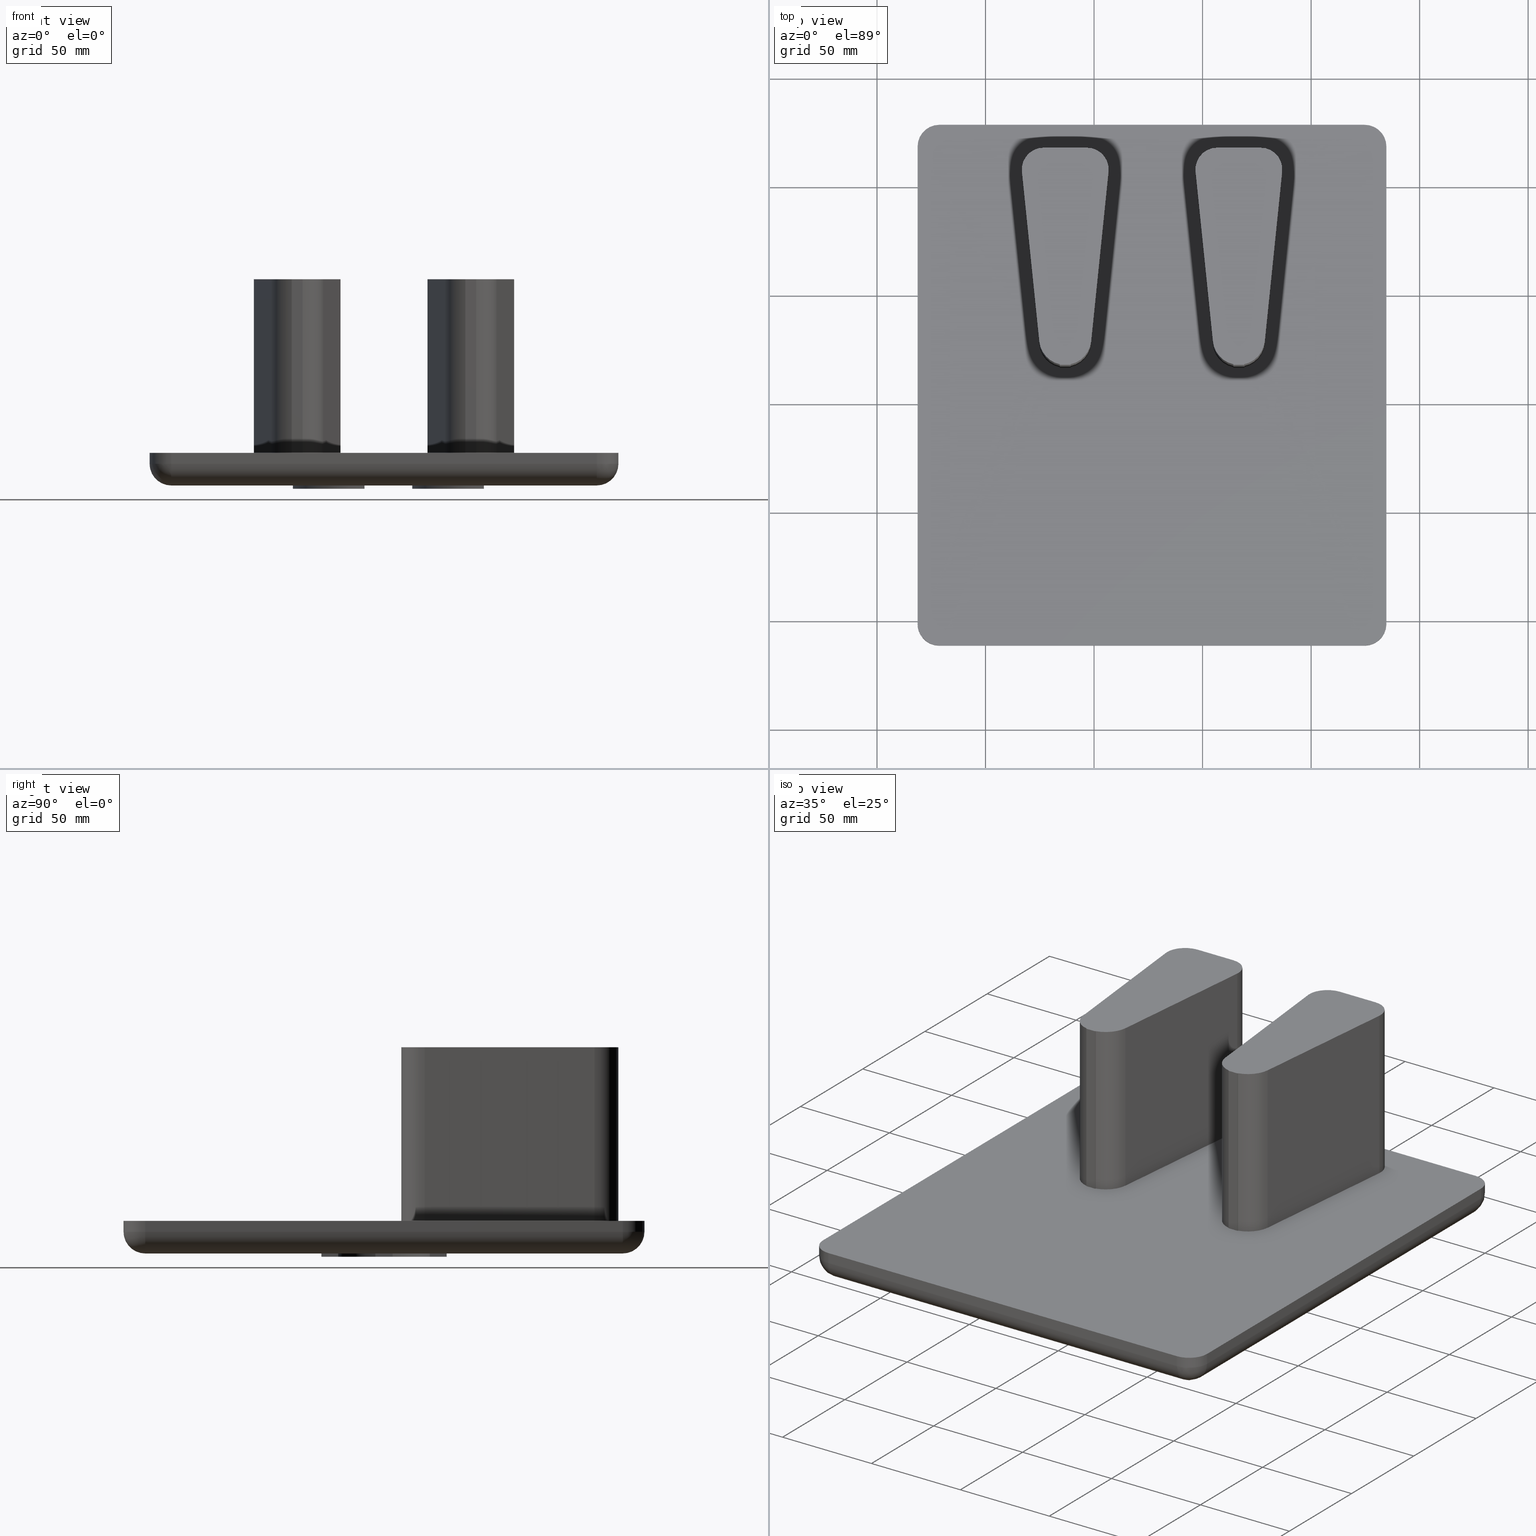
[diagram: canonical four-view strip — front | top / right | iso, engineering-drawing reading convention]
A machine part, canonical four-view strip (front | top / right | iso — engineering-drawing reading convention). The complete STEP part file that produces these views, byte-faithful:
ISO-10303-21;
HEADER;
/****************************************************************
 * Generated by software with PDElib inside                    *
 * PDElib Version v51a, created Wed 11/30/2011                  *
 * ITI Transcendata (http://www.transcendata.com/)              *
 ****************************************************************/
FILE_DESCRIPTION((' '),'2;1');
FILE_NAME('L:\\General\\For Claudia\\web change requests\\FHL8 AutoCAD Drawings\\FHL8-AME_3D.stp','2012-08-31T15:55:25',(' '),(' '),' ','ACIS',' ');
FILE_SCHEMA(('CONFIG_CONTROL_DESIGN'));
ENDSEC;
DATA;
#5=APPLICATION_CONTEXT('configuration controlled 3D designs of mechanical parts and assemblies');
#6=APPLICATION_PROTOCOL_DEFINITION('International Standard','config_control_design',1995,#5);
#7=MECHANICAL_CONTEXT('None',#5,'mechanical');
#8=PRODUCT('L:\\General\\For Claudia\\web change requests\\FHL8 AutoCAD Drawings\\FHL8-AME_3D.stp','L:\\General\\For Claudia\\web change requests\\FHL8 AutoCAD Drawings\\FHL8-AME_3D.stp','None',(#7));
#9=PRODUCT_RELATED_PRODUCT_CATEGORY('detail',$,(#8));
#10=PRODUCT_CATEGORY('part',$);
#11=PRODUCT_CATEGORY_RELATIONSHIP('None','None',#10,#9);
#12=PERSON('PERSON1','None','None',$,$,$);
#13=ORGANIZATION('','None','None');
#14=PERSON_AND_ORGANIZATION(#12,#13);
#15=PERSON_AND_ORGANIZATION_ROLE('design_owner');
#16=CC_DESIGN_PERSON_AND_ORGANIZATION_ASSIGNMENT(#14,#15,(#8));
#17=PRODUCT_DEFINITION_FORMATION_WITH_SPECIFIED_SOURCE('None','None',#8,.NOT_KNOWN.);
#18=PERSON('PERSON2','None','None',$,$,$);
#19=ORGANIZATION('','None','None');
#20=PERSON_AND_ORGANIZATION(#18,#19);
#21=PERSON_AND_ORGANIZATION_ROLE('creator');
#22=CC_DESIGN_PERSON_AND_ORGANIZATION_ASSIGNMENT(#20,#21,(#17));
#23=PERSON('PERSON3','None','None',$,$,$);
#24=ORGANIZATION('','None','None');
#25=PERSON_AND_ORGANIZATION(#23,#24);
#26=PERSON_AND_ORGANIZATION_ROLE('part_supplier');
#27=CC_DESIGN_PERSON_AND_ORGANIZATION_ASSIGNMENT(#25,#26,(#17));
#28=APPROVAL_STATUS('approved');
#29=APPROVAL(#28,'None');
#30=PERSON('PERSON4','None','None',$,$,$);
#31=ORGANIZATION('','None','None');
#32=PERSON_AND_ORGANIZATION(#30,#31);
#33=APPROVAL_ROLE('None');
#34=APPROVAL_PERSON_ORGANIZATION(#32,#29,#33);
#35=CALENDAR_DATE(2012,31,8);
#36=COORDINATED_UNIVERSAL_TIME_OFFSET(0,0,.AHEAD.);
#37=LOCAL_TIME(15,55,25.0,#36);
#38=DATE_AND_TIME(#35,#37);
#39=APPROVAL_DATE_TIME(#38,#29);
#40=CC_DESIGN_APPROVAL(#29,(#17));
#41=SECURITY_CLASSIFICATION_LEVEL('unclassified');
#42=SECURITY_CLASSIFICATION('None','None',#41);
#43=CC_DESIGN_SECURITY_CLASSIFICATION(#42,(#17));
#44=APPROVAL_STATUS('approved');
#45=APPROVAL(#44,'None');
#46=PERSON('PERSON5','None','None',$,$,$);
#47=ORGANIZATION('','None','None');
#48=PERSON_AND_ORGANIZATION(#46,#47);
#49=APPROVAL_ROLE('None');
#50=APPROVAL_PERSON_ORGANIZATION(#48,#45,#49);
#51=CALENDAR_DATE(2012,31,8);
#52=COORDINATED_UNIVERSAL_TIME_OFFSET(0,0,.AHEAD.);
#53=LOCAL_TIME(15,55,25.0,#52);
#54=DATE_AND_TIME(#51,#53);
#55=APPROVAL_DATE_TIME(#54,#45);
#56=CC_DESIGN_APPROVAL(#45,(#42));
#57=PERSON('PERSON6','None','None',$,$,$);
#58=ORGANIZATION('','None','None');
#59=PERSON_AND_ORGANIZATION(#57,#58);
#60=PERSON_AND_ORGANIZATION_ROLE('classification_officer');
#61=CC_DESIGN_PERSON_AND_ORGANIZATION_ASSIGNMENT(#59,#60,(#42));
#62=DATE_TIME_ROLE('classification_date');
#63=CALENDAR_DATE(2012,31,8);
#64=COORDINATED_UNIVERSAL_TIME_OFFSET(0,0,.AHEAD.);
#65=LOCAL_TIME(15,55,25.0,#64);
#66=DATE_AND_TIME(#63,#65);
#67=CC_DESIGN_DATE_AND_TIME_ASSIGNMENT(#66,#62,(#42));
#68=DESIGN_CONTEXT('part definition',#5,'design');
#69=PRODUCT_DEFINITION('None','None',#17,#68);
#70=PERSON('PERSON7','None','None',$,$,$);
#71=ORGANIZATION('','None','None');
#72=PERSON_AND_ORGANIZATION(#70,#71);
#73=PERSON_AND_ORGANIZATION_ROLE('creator');
#74=CC_DESIGN_PERSON_AND_ORGANIZATION_ASSIGNMENT(#72,#73,(#69));
#75=DATE_TIME_ROLE('creation_date');
#76=CALENDAR_DATE(2012,31,8);
#77=COORDINATED_UNIVERSAL_TIME_OFFSET(0,0,.AHEAD.);
#78=LOCAL_TIME(15,55,25.0,#77);
#79=DATE_AND_TIME(#76,#78);
#80=CC_DESIGN_DATE_AND_TIME_ASSIGNMENT(#79,#75,(#69));
#81=APPROVAL_STATUS('approved');
#82=APPROVAL(#81,'None');
#83=PERSON('PERSON8','None','None',$,$,$);
#84=ORGANIZATION('','None','None');
#85=PERSON_AND_ORGANIZATION(#83,#84);
#86=APPROVAL_ROLE('None');
#87=APPROVAL_PERSON_ORGANIZATION(#85,#82,#86);
#88=CALENDAR_DATE(2012,31,8);
#89=COORDINATED_UNIVERSAL_TIME_OFFSET(0,0,.AHEAD.);
#90=LOCAL_TIME(15,55,25.0,#89);
#91=DATE_AND_TIME(#88,#90);
#92=APPROVAL_DATE_TIME(#91,#82);
#93=CC_DESIGN_APPROVAL(#82,(#69));
#99=(NAMED_UNIT(*)PLANE_ANGLE_UNIT()SI_UNIT($,.RADIAN.));
#100=DIMENSIONAL_EXPONENTS(0.0,0.0,0.0,0.0,0.0,0.0,0.0);
#101=PLANE_ANGLE_MEASURE_WITH_UNIT(PLANE_ANGLE_MEASURE(0.0174532925),#99);
#105=(CONVERSION_BASED_UNIT('DEGREE',#101)NAMED_UNIT(#100)PLANE_ANGLE_UNIT());
#109=(NAMED_UNIT(*)SI_UNIT($,.STERADIAN.)SOLID_ANGLE_UNIT());
#113=(LENGTH_UNIT()NAMED_UNIT(*)SI_UNIT(.MILLI.,.METRE.));
#115=UNCERTAINTY_MEASURE_WITH_UNIT(LENGTH_MEASURE(0.001),#113,'DISTANCE_ACCURACY_VALUE','');
#117=(GEOMETRIC_REPRESENTATION_CONTEXT(3)GLOBAL_UNCERTAINTY_ASSIGNED_CONTEXT((#115))GLOBAL_UNIT_ASSIGNED_CONTEXT((#105,#109,#113))REPRESENTATION_CONTEXT('None','None'));
#118=AXIS2_PLACEMENT_3D('',#119,#120,#121);
#119=CARTESIAN_POINT('',(0.0,0.0,0.0));
#120=DIRECTION('',(0.0,0.0,1.0));
#121=DIRECTION('',(1.0,0.0,0.0));
#122=SHAPE_REPRESENTATION('',(#118),#117);
#123=PRODUCT_DEFINITION_SHAPE('','',#69);
#124=SHAPE_DEFINITION_REPRESENTATION(#123,#122);
#130=(NAMED_UNIT(*)PLANE_ANGLE_UNIT()SI_UNIT($,.RADIAN.));
#131=DIMENSIONAL_EXPONENTS(0.0,0.0,0.0,0.0,0.0,0.0,0.0);
#132=PLANE_ANGLE_MEASURE_WITH_UNIT(PLANE_ANGLE_MEASURE(0.0174532925),#130);
#136=(CONVERSION_BASED_UNIT('DEGREE',#132)NAMED_UNIT(#131)PLANE_ANGLE_UNIT());
#140=(NAMED_UNIT(*)SI_UNIT($,.STERADIAN.)SOLID_ANGLE_UNIT());
#144=(LENGTH_UNIT()NAMED_UNIT(*)SI_UNIT(.CENTI.,.METRE.));
#146=UNCERTAINTY_MEASURE_WITH_UNIT(LENGTH_MEASURE(0.000001),#144,'DISTANCE_ACCURACY_VALUE','');
#148=(GEOMETRIC_REPRESENTATION_CONTEXT(3)GLOBAL_UNCERTAINTY_ASSIGNED_CONTEXT((#146))GLOBAL_UNIT_ASSIGNED_CONTEXT((#136,#140,#144))REPRESENTATION_CONTEXT('','3D'));
#149=CARTESIAN_POINT('',(-163.30096754634269,128.64077403626658,15.000000000000002));
#150=DIRECTION('',(0.0,0.0,1.0));
#151=DIRECTION('',(0.994794975775302,0.101896791766063,0.0));
#152=AXIS2_PLACEMENT_3D('',#149,#150,#151);
#153=CYLINDRICAL_SURFACE('',#152,12.000000000000002);
#154=CARTESIAN_POINT('',(-160.80096754634269,116.90407944196107,95.000000000000028));
#155=VERTEX_POINT('',#154);
#156=CARTESIAN_POINT('',(-160.80096754634269,116.90407944196107,15.000000000000002));
#157=VERTEX_POINT('',#156);
#158=CARTESIAN_POINT('',(-160.80096754634269,116.90407944196107,95.000000000000028));
#159=DIRECTION('',(0.0,0.0,-1.0));
#160=VECTOR('',#159,80.000000000000028);
#161=LINE('',#158,#160);
#162=EDGE_CURVE('',#155,#157,#161,.T.);
#163=ORIENTED_EDGE('',*,*,#162,.T.);
#164=CARTESIAN_POINT('',(-151.36342783703913,127.41801253507381,15.000000000000002));
#165=VERTEX_POINT('',#164);
#166=CARTESIAN_POINT('',(-163.30096754634269,128.64077403626658,15.000000000000002));
#167=DIRECTION('',(0.0,0.0,-1.0));
#168=DIRECTION('',(0.994794975775302,0.101896791766063,0.0));
#169=AXIS2_PLACEMENT_3D('',#166,#167,#168);
#170=CIRCLE('',#169,12.000000000000002);
#171=EDGE_CURVE('',#165,#157,#170,.T.);
#172=ORIENTED_EDGE('',*,*,#171,.F.);
#173=CARTESIAN_POINT('',(-151.36342783703913,127.41801253507381,95.000000000000028));
#174=VERTEX_POINT('',#173);
#175=CARTESIAN_POINT('',(-151.36342783703913,127.41801253507381,15.000000000000002));
#176=DIRECTION('',(0.0,0.0,1.0));
#177=VECTOR('',#176,80.000000000000028);
#178=LINE('',#175,#177);
#179=EDGE_CURVE('',#165,#174,#178,.T.);
#180=ORIENTED_EDGE('',*,*,#179,.T.);
#181=CARTESIAN_POINT('',(-163.30096754634269,128.64077403626658,95.000000000000028));
#182=DIRECTION('',(0.0,0.0,-1.0));
#183=DIRECTION('',(-0.208333333333334,0.978057882858792,0.0));
#184=AXIS2_PLACEMENT_3D('',#181,#182,#183);
#185=CIRCLE('',#184,12.000000000000002);
#186=EDGE_CURVE('',#174,#155,#185,.T.);
#187=ORIENTED_EDGE('',*,*,#186,.T.);
#188=EDGE_LOOP('',(#163,#172,#180,#187));
#189=FACE_OUTER_BOUND('',#188,.T.);
#190=ADVANCED_FACE('',(#189),#153,.T.);
#191=CARTESIAN_POINT('',(-83.300967546342633,128.64077403626658,15.000000000000002));
#192=DIRECTION('',(0.0,0.0,-1.0));
#193=DIRECTION('',(-0.994794975775302,0.101896791766063,0.0));
#194=AXIS2_PLACEMENT_3D('',#191,#192,#193);
#195=CYLINDRICAL_SURFACE('',#194,12.000000000000002);
#196=CARTESIAN_POINT('',(-80.800967546342662,116.90407944196109,95.000000000000028));
#197=VERTEX_POINT('',#196);
#198=CARTESIAN_POINT('',(-80.800967546342662,116.90407944196109,15.000000000000002));
#199=VERTEX_POINT('',#198);
#200=CARTESIAN_POINT('',(-80.800967546342662,116.90407944196109,95.000000000000028));
#201=DIRECTION('',(0.0,0.0,-1.0));
#202=VECTOR('',#201,80.000000000000028);
#203=LINE('',#200,#202);
#204=EDGE_CURVE('',#197,#199,#203,.T.);
#205=ORIENTED_EDGE('',*,*,#204,.T.);
#206=CARTESIAN_POINT('',(-71.363427837039026,127.41801253507381,15.000000000000002));
#207=VERTEX_POINT('',#206);
#208=CARTESIAN_POINT('',(-83.300967546342633,128.64077403626658,15.000000000000002));
#209=DIRECTION('',(0.0,0.0,-1.0));
#210=DIRECTION('',(-0.994794975775302,0.101896791766063,0.0));
#211=AXIS2_PLACEMENT_3D('',#208,#209,#210);
#212=CIRCLE('',#211,12.000000000000002);
#213=EDGE_CURVE('',#207,#199,#212,.T.);
#214=ORIENTED_EDGE('',*,*,#213,.F.);
#215=CARTESIAN_POINT('',(-71.363427837039026,127.41801253507381,95.000000000000028));
#216=VERTEX_POINT('',#215);
#217=CARTESIAN_POINT('',(-71.363427837039026,127.41801253507381,15.000000000000002));
#218=DIRECTION('',(0.0,0.0,1.0));
#219=VECTOR('',#218,80.000000000000028);
#220=LINE('',#217,#219);
#221=EDGE_CURVE('',#207,#216,#220,.T.);
#222=ORIENTED_EDGE('',*,*,#221,.T.);
#223=CARTESIAN_POINT('',(-83.300967546342633,128.64077403626658,95.000000000000028));
#224=DIRECTION('',(0.0,0.0,-1.0));
#225=DIRECTION('',(-0.208333333333333,0.978057882858792,0.0));
#226=AXIS2_PLACEMENT_3D('',#223,#224,#225);
#227=CIRCLE('',#226,12.0);
#228=EDGE_CURVE('',#216,#197,#227,.T.);
#229=ORIENTED_EDGE('',*,*,#228,.T.);
#230=EDGE_LOOP('',(#205,#214,#222,#229));
#231=FACE_OUTER_BOUND('',#230,.T.);
#232=ADVANCED_FACE('',(#231),#195,.T.);
#233=CARTESIAN_POINT('',(6.382004128003739,116.64077403626656,95.0));
#234=DIRECTION('',(0.0,1.0,0.0));
#235=DIRECTION('',(0.0,0.0,1.0));
#236=AXIS2_PLACEMENT_3D('',#233,#234,#235);
#237=PLANE('',#236);
#238=CARTESIAN_POINT('',(-165.80096754634269,116.64077403626656,15.000000000000002));
#239=VERTEX_POINT('',#238);
#240=CARTESIAN_POINT('',(-165.80096754634269,116.64077403626656,95.000000000000028));
#241=VERTEX_POINT('',#240);
#242=CARTESIAN_POINT('',(-165.80096754634269,116.64077403626656,15.000000000000002));
#243=DIRECTION('',(0.0,0.0,1.0));
#244=VECTOR('',#243,80.000000000000028);
#245=LINE('',#242,#244);
#246=EDGE_CURVE('',#239,#241,#245,.T.);
#247=ORIENTED_EDGE('',*,*,#246,.F.);
#248=CARTESIAN_POINT('',(-160.80096754634269,116.64077403626656,15.000000000000002));
#249=VERTEX_POINT('',#248);
#250=CARTESIAN_POINT('',(-165.80096754634269,116.64077403626656,15.000000000000002));
#251=DIRECTION('',(1.0,0.0,0.0));
#252=VECTOR('',#251,5.0);
#253=LINE('',#250,#252);
#254=EDGE_CURVE('',#239,#249,#253,.T.);
#255=ORIENTED_EDGE('',*,*,#254,.T.);
#256=CARTESIAN_POINT('',(-160.80096754634269,116.64077403626656,95.000000000000028));
#257=VERTEX_POINT('',#256);
#258=CARTESIAN_POINT('',(-160.80096754634269,116.64077403626656,95.000000000000028));
#259=DIRECTION('',(0.0,0.0,-1.0));
#260=VECTOR('',#259,80.000000000000028);
#261=LINE('',#258,#260);
#262=EDGE_CURVE('',#257,#249,#261,.T.);
#263=ORIENTED_EDGE('',*,*,#262,.F.);
#264=CARTESIAN_POINT('',(-160.80096754634269,116.64077403626656,95.000000000000028));
#265=DIRECTION('',(-1.0,0.0,0.0));
#266=VECTOR('',#265,5.0);
#267=LINE('',#264,#266);
#268=EDGE_CURVE('',#257,#241,#267,.T.);
#269=ORIENTED_EDGE('',*,*,#268,.T.);
#270=EDGE_LOOP('',(#247,#255,#263,#269));
#271=FACE_OUTER_BOUND('',#270,.T.);
#272=ADVANCED_FACE('',(#271),#237,.F.);
#273=CARTESIAN_POINT('',(6.382004128003739,116.64077403626656,95.0));
#274=DIRECTION('',(0.0,1.0,0.0));
#275=DIRECTION('',(0.0,0.0,1.0));
#276=AXIS2_PLACEMENT_3D('',#273,#274,#275);
#277=PLANE('',#276);
#278=CARTESIAN_POINT('',(-80.800967546342662,116.64077403626656,95.000000000000028));
#279=VERTEX_POINT('',#278);
#280=CARTESIAN_POINT('',(-80.800967546342662,116.64077403626656,15.000000000000002));
#281=VERTEX_POINT('',#280);
#282=CARTESIAN_POINT('',(-80.800967546342662,116.64077403626656,95.000000000000028));
#283=DIRECTION('',(0.0,0.0,-1.0));
#284=VECTOR('',#283,80.000000000000028);
#285=LINE('',#282,#284);
#286=EDGE_CURVE('',#279,#281,#285,.T.);
#287=ORIENTED_EDGE('',*,*,#286,.F.);
#288=CARTESIAN_POINT('',(-85.800967546342633,116.64077403626656,95.000000000000028));
#289=VERTEX_POINT('',#288);
#290=CARTESIAN_POINT('',(-80.800967546342662,116.64077403626656,95.000000000000028));
#291=DIRECTION('',(-1.0,0.0,0.0));
#292=VECTOR('',#291,4.999999999999986);
#293=LINE('',#290,#292);
#294=EDGE_CURVE('',#279,#289,#293,.T.);
#295=ORIENTED_EDGE('',*,*,#294,.T.);
#296=CARTESIAN_POINT('',(-85.800967546342633,116.64077403626656,15.000000000000002));
#297=VERTEX_POINT('',#296);
#298=CARTESIAN_POINT('',(-85.800967546342662,116.64077403626656,15.000000000000002));
#299=DIRECTION('',(0.0,0.0,1.0));
#300=VECTOR('',#299,80.000000000000028);
#301=LINE('',#298,#300);
#302=EDGE_CURVE('',#297,#289,#301,.T.);
#303=ORIENTED_EDGE('',*,*,#302,.F.);
#304=CARTESIAN_POINT('',(-85.800967546342633,116.64077403626656,15.000000000000002));
#305=DIRECTION('',(1.0,0.0,0.0));
#306=VECTOR('',#305,4.999999999999986);
#307=LINE('',#304,#306);
#308=EDGE_CURVE('',#297,#281,#307,.T.);
#309=ORIENTED_EDGE('',*,*,#308,.T.);
#310=EDGE_LOOP('',(#287,#295,#303,#309));
#311=FACE_OUTER_BOUND('',#310,.T.);
#312=ADVANCED_FACE('',(#311),#277,.F.);
#313=CARTESIAN_POINT('',(-83.300967546342633,128.64077403626658,15.000000000000002));
#314=DIRECTION('',(0.0,0.0,-1.0));
#315=DIRECTION('',(-0.994794975775302,0.101896791766063,0.0));
#316=AXIS2_PLACEMENT_3D('',#313,#314,#315);
#317=CYLINDRICAL_SURFACE('',#316,12.000000000000002);
#318=CARTESIAN_POINT('',(-85.800967546342662,116.90407944196109,15.000000000000002));
#319=VERTEX_POINT('',#318);
#320=CARTESIAN_POINT('',(-85.800967546342662,116.90407944196109,95.000000000000028));
#321=VERTEX_POINT('',#320);
#322=CARTESIAN_POINT('',(-85.800967546342662,116.90407944196109,15.000000000000002));
#323=DIRECTION('',(0.0,0.0,1.0));
#324=VECTOR('',#323,80.000000000000028);
#325=LINE('',#322,#324);
#326=EDGE_CURVE('',#319,#321,#325,.T.);
#327=ORIENTED_EDGE('',*,*,#326,.T.);
#328=CARTESIAN_POINT('',(-95.238507255646283,127.41801253507381,95.000000000000028));
#329=VERTEX_POINT('',#328);
#330=CARTESIAN_POINT('',(-83.300967546342633,128.64077403626658,95.000000000000028));
#331=DIRECTION('',(0.0,0.0,-1.0));
#332=DIRECTION('',(0.994794975775302,0.101896791766063,0.0));
#333=AXIS2_PLACEMENT_3D('',#330,#331,#332);
#334=CIRCLE('',#333,12.000000000000002);
#335=EDGE_CURVE('',#321,#329,#334,.T.);
#336=ORIENTED_EDGE('',*,*,#335,.T.);
#337=CARTESIAN_POINT('',(-95.238507255646283,127.41801253507381,15.000000000000002));
#338=VERTEX_POINT('',#337);
#339=CARTESIAN_POINT('',(-95.238507255646283,127.41801253507381,15.000000000000002));
#340=DIRECTION('',(0.0,0.0,1.0));
#341=VECTOR('',#340,80.000000000000028);
#342=LINE('',#339,#341);
#343=EDGE_CURVE('',#338,#329,#342,.T.);
#344=ORIENTED_EDGE('',*,*,#343,.F.);
#345=CARTESIAN_POINT('',(-83.300967546342633,128.64077403626658,15.000000000000002));
#346=DIRECTION('',(0.0,0.0,-1.0));
#347=DIRECTION('',(-0.994794975775302,0.101896791766063,0.0));
#348=AXIS2_PLACEMENT_3D('',#345,#346,#347);
#349=CIRCLE('',#348,12.000000000000002);
#350=EDGE_CURVE('',#319,#338,#349,.T.);
#351=ORIENTED_EDGE('',*,*,#350,.F.);
#352=EDGE_LOOP('',(#327,#336,#344,#351));
#353=FACE_OUTER_BOUND('',#352,.T.);
#354=ADVANCED_FACE('',(#353),#317,.T.);
#355=CARTESIAN_POINT('',(-160.80096754634269,116.90407944196107,15.000000000000002));
#356=DIRECTION('',(1.0,0.0,0.0));
#357=DIRECTION('',(0.0,0.0,-1.0));
#358=AXIS2_PLACEMENT_3D('',#355,#356,#357);
#359=PLANE('',#358);
#360=ORIENTED_EDGE('',*,*,#262,.T.);
#361=CARTESIAN_POINT('',(-160.80096754634269,116.90407944196107,15.000000000000002));
#362=DIRECTION('',(0.0,-1.0,0.0));
#363=VECTOR('',#362,0.263305405694496);
#364=LINE('',#361,#363);
#365=EDGE_CURVE('',#157,#249,#364,.T.);
#366=ORIENTED_EDGE('',*,*,#365,.F.);
#367=ORIENTED_EDGE('',*,*,#162,.F.);
#368=CARTESIAN_POINT('',(-160.80096754634269,116.90407944196107,95.000000000000028));
#369=DIRECTION('',(0.0,-1.0,0.0));
#370=VECTOR('',#369,0.263305405694496);
#371=LINE('',#368,#370);
#372=EDGE_CURVE('',#155,#257,#371,.T.);
#373=ORIENTED_EDGE('',*,*,#372,.T.);
#374=EDGE_LOOP('',(#360,#366,#367,#373));
#375=FACE_OUTER_BOUND('',#374,.T.);
#376=ADVANCED_FACE('',(#375),#359,.T.);
#377=CARTESIAN_POINT('',(-132.30096754634258,79.917960803576378,0.0));
#378=DIRECTION('',(1.0,0.0,0.0));
#379=DIRECTION('',(0.0,0.0,-1.0));
#380=AXIS2_PLACEMENT_3D('',#377,#378,#379);
#381=PLANE('',#380);
#382=CARTESIAN_POINT('',(-132.30096754634258,79.917960803576378,-1.5));
#383=VERTEX_POINT('',#382);
#384=CARTESIAN_POINT('',(-132.30096754634258,87.516143861988922,-1.5));
#385=VERTEX_POINT('',#384);
#386=CARTESIAN_POINT('',(-132.30096754634258,79.917960803576378,-1.5));
#387=DIRECTION('',(0.0,1.0,0.0));
#388=VECTOR('',#387,7.598183058412531);
#389=LINE('',#386,#388);
#390=EDGE_CURVE('',#383,#385,#389,.T.);
#391=ORIENTED_EDGE('',*,*,#390,.T.);
#392=CARTESIAN_POINT('',(-132.30096754634258,87.516143861988922,0.0));
#393=VERTEX_POINT('',#392);
#394=CARTESIAN_POINT('',(-132.30096754634258,87.516143861988922,0.0));
#395=DIRECTION('',(0.0,0.0,-1.0));
#396=VECTOR('',#395,1.5);
#397=LINE('',#394,#396);
#398=EDGE_CURVE('',#393,#385,#397,.T.);
#399=ORIENTED_EDGE('',*,*,#398,.F.);
#400=CARTESIAN_POINT('',(-132.30096754634258,79.917960803576378,0.0));
#401=VERTEX_POINT('',#400);
#402=CARTESIAN_POINT('',(-132.30096754634258,79.917960803576378,0.0));
#403=DIRECTION('',(0.0,1.0,0.0));
#404=VECTOR('',#403,7.598183058412531);
#405=LINE('',#402,#404);
#406=EDGE_CURVE('',#401,#393,#405,.T.);
#407=ORIENTED_EDGE('',*,*,#406,.F.);
#408=CARTESIAN_POINT('',(-132.30096754634258,79.917960803576378,0.0));
#409=DIRECTION('',(0.0,0.0,-1.0));
#410=VECTOR('',#409,1.5);
#411=LINE('',#408,#410);
#412=EDGE_CURVE('',#401,#383,#411,.T.);
#413=ORIENTED_EDGE('',*,*,#412,.T.);
#414=EDGE_LOOP('',(#391,#399,#407,#413));
#415=FACE_OUTER_BOUND('',#414,.T.);
#416=ADVANCED_FACE('',(#415),#381,.T.);
#417=CARTESIAN_POINT('',(-136.30096754634263,108.64077403626649,0.0));
#418=DIRECTION('',(0.0,0.0,-1.0));
#419=DIRECTION('',(-0.186046511627911,0.982540938338493,0.0));
#420=AXIS2_PLACEMENT_3D('',#417,#418,#419);
#421=CYLINDRICAL_SURFACE('',#420,21.5);
#422=CARTESIAN_POINT('',(-132.30096754634263,129.76540421054409,-1.5));
#423=VERTEX_POINT('',#422);
#424=CARTESIAN_POINT('',(-136.30096754634263,108.64077403626649,-1.5));
#425=DIRECTION('',(0.0,0.0,-1.0));
#426=DIRECTION('',(-0.186046511627911,0.982540938338493,0.0));
#427=AXIS2_PLACEMENT_3D('',#424,#425,#426);
#428=CIRCLE('',#427,21.5);
#429=EDGE_CURVE('',#385,#423,#428,.T.);
#430=ORIENTED_EDGE('',*,*,#429,.T.);
#431=CARTESIAN_POINT('',(-132.30096754634263,129.76540421054409,0.0));
#432=VERTEX_POINT('',#431);
#433=CARTESIAN_POINT('',(-132.30096754634263,129.76540421054409,0.0));
#434=DIRECTION('',(0.0,0.0,-1.0));
#435=VECTOR('',#434,1.5);
#436=LINE('',#433,#435);
#437=EDGE_CURVE('',#432,#423,#436,.T.);
#438=ORIENTED_EDGE('',*,*,#437,.F.);
#439=CARTESIAN_POINT('',(-136.30096754634263,108.64077403626649,0.0));
#440=DIRECTION('',(0.0,0.0,-1.0));
#441=DIRECTION('',(-0.186046511627911,0.982540938338493,0.0));
#442=AXIS2_PLACEMENT_3D('',#439,#440,#441);
#443=CIRCLE('',#442,21.5);
#444=EDGE_CURVE('',#393,#432,#443,.T.);
#445=ORIENTED_EDGE('',*,*,#444,.F.);
#446=ORIENTED_EDGE('',*,*,#398,.T.);
#447=EDGE_LOOP('',(#430,#438,#445,#446));
#448=FACE_OUTER_BOUND('',#447,.T.);
#449=ADVANCED_FACE('',(#448),#421,.F.);
#450=CARTESIAN_POINT('',(-132.30096754634263,129.76540421054409,0.0));
#451=DIRECTION('',(1.0,0.0,0.0));
#452=DIRECTION('',(0.0,0.0,-1.0));
#453=AXIS2_PLACEMENT_3D('',#450,#451,#452);
#454=PLANE('',#453);
#455=CARTESIAN_POINT('',(-132.30096754634263,137.36358726895668,-1.5));
#456=VERTEX_POINT('',#455);
#457=CARTESIAN_POINT('',(-132.30096754634263,129.76540421054409,-1.5));
#458=DIRECTION('',(0.0,1.0,0.0));
#459=VECTOR('',#458,7.598183058412559);
#460=LINE('',#457,#459);
#461=EDGE_CURVE('',#423,#456,#460,.T.);
#462=ORIENTED_EDGE('',*,*,#461,.T.);
#463=CARTESIAN_POINT('',(-132.30096754634263,137.36358726895668,0.0));
#464=VERTEX_POINT('',#463);
#465=CARTESIAN_POINT('',(-132.30096754634263,137.36358726895668,0.0));
#466=DIRECTION('',(0.0,0.0,-1.0));
#467=VECTOR('',#466,1.5);
#468=LINE('',#465,#467);
#469=EDGE_CURVE('',#464,#456,#468,.T.);
#470=ORIENTED_EDGE('',*,*,#469,.F.);
#471=CARTESIAN_POINT('',(-132.30096754634263,129.76540421054409,0.0));
#472=DIRECTION('',(0.0,1.0,0.0));
#473=VECTOR('',#472,7.598183058412559);
#474=LINE('',#471,#473);
#475=EDGE_CURVE('',#432,#464,#474,.T.);
#476=ORIENTED_EDGE('',*,*,#475,.F.);
#477=ORIENTED_EDGE('',*,*,#437,.T.);
#478=EDGE_LOOP('',(#462,#470,#476,#477));
#479=FACE_OUTER_BOUND('',#478,.T.);
#480=ADVANCED_FACE('',(#479),#454,.T.);
#481=CARTESIAN_POINT('',(-136.30096754634263,108.64077403626649,0.0));
#482=DIRECTION('',(0.0,0.0,-1.0));
#483=DIRECTION('',(0.137931034482762,-0.990441835610004,0.0));
#484=AXIS2_PLACEMENT_3D('',#481,#482,#483);
#485=CYLINDRICAL_SURFACE('',#484,29.0);
#486=CARTESIAN_POINT('',(-136.30096754634263,108.64077403626649,-1.5));
#487=DIRECTION('',(0.0,0.0,1.0));
#488=DIRECTION('',(0.137931034482762,-0.990441835610004,0.0));
#489=AXIS2_PLACEMENT_3D('',#486,#487,#488);
#490=CIRCLE('',#489,28.999999999999996);
#491=EDGE_CURVE('',#456,#383,#490,.T.);
#492=ORIENTED_EDGE('',*,*,#491,.T.);
#493=ORIENTED_EDGE('',*,*,#412,.F.);
#494=CARTESIAN_POINT('',(-136.30096754634263,108.64077403626649,0.0));
#495=DIRECTION('',(0.0,0.0,1.0));
#496=DIRECTION('',(0.137931034482762,-0.990441835610004,0.0));
#497=AXIS2_PLACEMENT_3D('',#494,#495,#496);
#498=CIRCLE('',#497,28.999999999999996);
#499=EDGE_CURVE('',#464,#401,#498,.T.);
#500=ORIENTED_EDGE('',*,*,#499,.F.);
#501=ORIENTED_EDGE('',*,*,#469,.T.);
#502=EDGE_LOOP('',(#492,#493,#500,#501));
#503=FACE_OUTER_BOUND('',#502,.T.);
#504=ADVANCED_FACE('',(#503),#485,.T.);
#505=CARTESIAN_POINT('',(-147.84605989732515,108.64077403626649,-1.5));
#506=DIRECTION('',(0.0,0.0,1.0));
#507=DIRECTION('',(1.0,0.0,0.0));
#508=AXIS2_PLACEMENT_3D('',#505,#506,#507);
#509=PLANE('',#508);
#510=ORIENTED_EDGE('',*,*,#390,.F.);
#511=ORIENTED_EDGE('',*,*,#491,.F.);
#512=ORIENTED_EDGE('',*,*,#461,.F.);
#513=ORIENTED_EDGE('',*,*,#429,.F.);
#514=EDGE_LOOP('',(#510,#511,#512,#513));
#515=FACE_OUTER_BOUND('',#514,.T.);
#516=ADVANCED_FACE('',(#515),#509,.F.);
#517=CARTESIAN_POINT('',(-81.300967546342633,108.64077403626641,0.0));
#518=DIRECTION('',(0.0,0.0,-1.0));
#519=DIRECTION('',(-0.18604651162791,0.982540938338493,0.0));
#520=AXIS2_PLACEMENT_3D('',#517,#518,#519);
#521=CYLINDRICAL_SURFACE('',#520,21.500000000000004);
#522=CARTESIAN_POINT('',(-77.300967546342576,87.516143861988823,-1.5));
#523=VERTEX_POINT('',#522);
#524=CARTESIAN_POINT('',(-102.42559772062025,104.64077403626641,-1.5));
#525=VERTEX_POINT('',#524);
#526=CARTESIAN_POINT('',(-81.300967546342633,108.64077403626641,-1.5));
#527=DIRECTION('',(0.0,0.0,-1.0));
#528=DIRECTION('',(-0.18604651162791,0.982540938338493,0.0));
#529=AXIS2_PLACEMENT_3D('',#526,#527,#528);
#530=CIRCLE('',#529,21.5);
#531=EDGE_CURVE('',#523,#525,#530,.T.);
#532=ORIENTED_EDGE('',*,*,#531,.T.);
#533=CARTESIAN_POINT('',(-102.42559772062025,104.64077403626641,0.0));
#534=VERTEX_POINT('',#533);
#535=CARTESIAN_POINT('',(-102.42559772062025,104.64077403626641,0.0));
#536=DIRECTION('',(0.0,0.0,-1.0));
#537=VECTOR('',#536,1.5);
#538=LINE('',#535,#537);
#539=EDGE_CURVE('',#534,#525,#538,.T.);
#540=ORIENTED_EDGE('',*,*,#539,.F.);
#541=CARTESIAN_POINT('',(-77.300967546342576,87.516143861988823,0.0));
#542=VERTEX_POINT('',#541);
#543=CARTESIAN_POINT('',(-81.300967546342633,108.64077403626641,0.0));
#544=DIRECTION('',(0.0,0.0,-1.0));
#545=DIRECTION('',(-0.18604651162791,0.982540938338493,0.0));
#546=AXIS2_PLACEMENT_3D('',#543,#544,#545);
#547=CIRCLE('',#546,21.5);
#548=EDGE_CURVE('',#542,#534,#547,.T.);
#549=ORIENTED_EDGE('',*,*,#548,.F.);
#550=CARTESIAN_POINT('',(-77.300967546342576,87.516143861988823,0.0));
#551=DIRECTION('',(0.0,0.0,-1.0));
#552=VECTOR('',#551,1.5);
#553=LINE('',#550,#552);
#554=EDGE_CURVE('',#542,#523,#553,.T.);
#555=ORIENTED_EDGE('',*,*,#554,.T.);
#556=EDGE_LOOP('',(#532,#540,#549,#555));
#557=FACE_OUTER_BOUND('',#556,.T.);
#558=ADVANCED_FACE('',(#557),#521,.F.);
#559=CARTESIAN_POINT('',(-102.42559772062025,104.64077403626641,0.0));
#560=DIRECTION('',(0.0,-1.0,0.0));
#561=DIRECTION('',(0.0,0.0,-1.0));
#562=AXIS2_PLACEMENT_3D('',#559,#560,#561);
#563=PLANE('',#562);
#564=CARTESIAN_POINT('',(-85.300967546342662,104.64077403626638,-1.5));
#565=VERTEX_POINT('',#564);
#566=CARTESIAN_POINT('',(-102.42559772062025,104.64077403626646,-1.5));
#567=DIRECTION('',(1.0,0.0,0.0));
#568=VECTOR('',#567,17.124630174277584);
#569=LINE('',#566,#568);
#570=EDGE_CURVE('',#525,#565,#569,.T.);
#571=ORIENTED_EDGE('',*,*,#570,.T.);
#572=CARTESIAN_POINT('',(-85.300967546342662,104.64077403626638,0.0));
#573=VERTEX_POINT('',#572);
#574=CARTESIAN_POINT('',(-85.300967546342662,104.64077403626638,0.0));
#575=DIRECTION('',(0.0,0.0,-1.0));
#576=VECTOR('',#575,1.5);
#577=LINE('',#574,#576);
#578=EDGE_CURVE('',#573,#565,#577,.T.);
#579=ORIENTED_EDGE('',*,*,#578,.F.);
#580=CARTESIAN_POINT('',(-102.42559772062025,104.64077403626646,0.0));
#581=DIRECTION('',(1.0,0.0,0.0));
#582=VECTOR('',#581,17.124630174277584);
#583=LINE('',#580,#582);
#584=EDGE_CURVE('',#534,#573,#583,.T.);
#585=ORIENTED_EDGE('',*,*,#584,.F.);
#586=ORIENTED_EDGE('',*,*,#539,.T.);
#587=EDGE_LOOP('',(#571,#579,#585,#586));
#588=FACE_OUTER_BOUND('',#587,.T.);
#589=ADVANCED_FACE('',(#588),#563,.T.);
#590=CARTESIAN_POINT('',(-85.300967546342662,104.64077403626638,0.0));
#591=DIRECTION('',(1.0,0.0,0.0));
#592=DIRECTION('',(0.0,0.0,-1.0));
#593=AXIS2_PLACEMENT_3D('',#590,#591,#592);
#594=PLANE('',#593);
#595=CARTESIAN_POINT('',(-85.300967546342662,112.64077403626641,-1.5));
#596=VERTEX_POINT('',#595);
#597=CARTESIAN_POINT('',(-85.300967546342662,104.64077403626638,-1.5));
#598=DIRECTION('',(0.0,1.0,0.0));
#599=VECTOR('',#598,8.000000000000028);
#600=LINE('',#597,#599);
#601=EDGE_CURVE('',#565,#596,#600,.T.);
#602=ORIENTED_EDGE('',*,*,#601,.T.);
#603=CARTESIAN_POINT('',(-85.300967546342662,112.64077403626641,0.0));
#604=VERTEX_POINT('',#603);
#605=CARTESIAN_POINT('',(-85.300967546342662,112.64077403626641,0.0));
#606=DIRECTION('',(0.0,0.0,-1.0));
#607=VECTOR('',#606,1.5);
#608=LINE('',#605,#607);
#609=EDGE_CURVE('',#604,#596,#608,.T.);
#610=ORIENTED_EDGE('',*,*,#609,.F.);
#611=CARTESIAN_POINT('',(-85.300967546342662,104.64077403626638,0.0));
#612=DIRECTION('',(0.0,1.0,0.0));
#613=VECTOR('',#612,8.000000000000028);
#614=LINE('',#611,#613);
#615=EDGE_CURVE('',#573,#604,#614,.T.);
#616=ORIENTED_EDGE('',*,*,#615,.F.);
#617=ORIENTED_EDGE('',*,*,#578,.T.);
#618=EDGE_LOOP('',(#602,#610,#616,#617));
#619=FACE_OUTER_BOUND('',#618,.T.);
#620=ADVANCED_FACE('',(#619),#594,.T.);
#621=CARTESIAN_POINT('',(-85.300967546342662,112.64077403626641,0.0));
#622=DIRECTION('',(0.0,1.0,0.0));
#623=DIRECTION('',(0.0,0.0,1.0));
#624=AXIS2_PLACEMENT_3D('',#621,#622,#623);
#625=PLANE('',#624);
#626=CARTESIAN_POINT('',(-102.42559772062025,112.64077403626641,-1.5));
#627=VERTEX_POINT('',#626);
#628=CARTESIAN_POINT('',(-85.300967546342662,112.64077403626641,-1.5));
#629=DIRECTION('',(-1.0,0.0,0.0));
#630=VECTOR('',#629,17.124630174277584);
#631=LINE('',#628,#630);
#632=EDGE_CURVE('',#596,#627,#631,.T.);
#633=ORIENTED_EDGE('',*,*,#632,.T.);
#634=CARTESIAN_POINT('',(-102.42559772062025,112.64077403626641,0.0));
#635=VERTEX_POINT('',#634);
#636=CARTESIAN_POINT('',(-102.42559772062025,112.64077403626641,0.0));
#637=DIRECTION('',(0.0,0.0,-1.0));
#638=VECTOR('',#637,1.5);
#639=LINE('',#636,#638);
#640=EDGE_CURVE('',#635,#627,#639,.T.);
#641=ORIENTED_EDGE('',*,*,#640,.F.);
#642=CARTESIAN_POINT('',(-85.300967546342662,112.64077403626641,0.0));
#643=DIRECTION('',(-1.0,0.0,0.0));
#644=VECTOR('',#643,17.124630174277584);
#645=LINE('',#642,#644);
#646=EDGE_CURVE('',#604,#635,#645,.T.);
#647=ORIENTED_EDGE('',*,*,#646,.F.);
#648=ORIENTED_EDGE('',*,*,#609,.T.);
#649=EDGE_LOOP('',(#633,#641,#647,#648));
#650=FACE_OUTER_BOUND('',#649,.T.);
#651=ADVANCED_FACE('',(#650),#625,.T.);
#652=CARTESIAN_POINT('',(-81.300967546342633,108.64077403626641,0.0));
#653=DIRECTION('',(0.0,0.0,-1.0));
#654=DIRECTION('',(0.982540938338494,-0.186046511627906,0.0));
#655=AXIS2_PLACEMENT_3D('',#652,#653,#654);
#656=CYLINDRICAL_SURFACE('',#655,21.499999999999996);
#657=CARTESIAN_POINT('',(-77.300967546342619,129.76540421054406,-1.5));
#658=VERTEX_POINT('',#657);
#659=CARTESIAN_POINT('',(-81.300967546342633,108.64077403626641,-1.5));
#660=DIRECTION('',(0.0,0.0,-1.0));
#661=DIRECTION('',(0.982540938338494,-0.186046511627906,0.0));
#662=AXIS2_PLACEMENT_3D('',#659,#660,#661);
#663=CIRCLE('',#662,21.499999999999996);
#664=EDGE_CURVE('',#627,#658,#663,.T.);
#665=ORIENTED_EDGE('',*,*,#664,.T.);
#666=CARTESIAN_POINT('',(-77.300967546342619,129.76540421054406,0.0));
#667=VERTEX_POINT('',#666);
#668=CARTESIAN_POINT('',(-77.300967546342619,129.76540421054406,0.0));
#669=DIRECTION('',(0.0,0.0,-1.0));
#670=VECTOR('',#669,1.5);
#671=LINE('',#668,#670);
#672=EDGE_CURVE('',#667,#658,#671,.T.);
#673=ORIENTED_EDGE('',*,*,#672,.F.);
#674=CARTESIAN_POINT('',(-81.300967546342633,108.64077403626641,0.0));
#675=DIRECTION('',(0.0,0.0,-1.0));
#676=DIRECTION('',(0.982540938338494,-0.186046511627906,0.0));
#677=AXIS2_PLACEMENT_3D('',#674,#675,#676);
#678=CIRCLE('',#677,21.499999999999996);
#679=EDGE_CURVE('',#635,#667,#678,.T.);
#680=ORIENTED_EDGE('',*,*,#679,.F.);
#681=ORIENTED_EDGE('',*,*,#640,.T.);
#682=EDGE_LOOP('',(#665,#673,#680,#681));
#683=FACE_OUTER_BOUND('',#682,.T.);
#684=ADVANCED_FACE('',(#683),#656,.F.);
#685=CARTESIAN_POINT('',(-77.300967546342619,129.76540421054406,0.0));
#686=DIRECTION('',(1.0,0.0,0.0));
#687=DIRECTION('',(0.0,0.0,-1.0));
#688=AXIS2_PLACEMENT_3D('',#685,#686,#687);
#689=PLANE('',#688);
#690=CARTESIAN_POINT('',(-77.300967546342619,137.36358726895662,-1.5));
#691=VERTEX_POINT('',#690);
#692=CARTESIAN_POINT('',(-77.300967546342619,129.76540421054406,-1.5));
#693=DIRECTION('',(0.0,1.0,0.0));
#694=VECTOR('',#693,7.598183058412587);
#695=LINE('',#692,#694);
#696=EDGE_CURVE('',#658,#691,#695,.T.);
#697=ORIENTED_EDGE('',*,*,#696,.T.);
#698=CARTESIAN_POINT('',(-77.300967546342619,137.36358726895662,0.0));
#699=VERTEX_POINT('',#698);
#700=CARTESIAN_POINT('',(-77.300967546342619,137.36358726895662,0.0));
#701=DIRECTION('',(0.0,0.0,-1.0));
#702=VECTOR('',#701,1.5);
#703=LINE('',#700,#702);
#704=EDGE_CURVE('',#699,#691,#703,.T.);
#705=ORIENTED_EDGE('',*,*,#704,.F.);
#706=CARTESIAN_POINT('',(-77.300967546342619,129.76540421054406,0.0));
#707=DIRECTION('',(0.0,1.0,0.0));
#708=VECTOR('',#707,7.598183058412587);
#709=LINE('',#706,#708);
#710=EDGE_CURVE('',#667,#699,#709,.T.);
#711=ORIENTED_EDGE('',*,*,#710,.F.);
#712=ORIENTED_EDGE('',*,*,#672,.T.);
#713=EDGE_LOOP('',(#697,#705,#711,#712));
#714=FACE_OUTER_BOUND('',#713,.T.);
#715=ADVANCED_FACE('',(#714),#689,.T.);
#716=CARTESIAN_POINT('',(-81.300967546342633,108.64077403626641,0.0));
#717=DIRECTION('',(0.0,0.0,-1.0));
#718=DIRECTION('',(0.137931034482762,-0.990441835610004,0.0));
#719=AXIS2_PLACEMENT_3D('',#716,#717,#718);
#720=CYLINDRICAL_SURFACE('',#719,29.000000000000046);
#721=CARTESIAN_POINT('',(-77.300967546342534,79.917960803576264,-1.5));
#722=VERTEX_POINT('',#721);
#723=CARTESIAN_POINT('',(-81.300967546342633,108.64077403626641,-1.5));
#724=DIRECTION('',(0.0,0.0,1.0));
#725=DIRECTION('',(0.137931034482762,-0.990441835610004,0.0));
#726=AXIS2_PLACEMENT_3D('',#723,#724,#725);
#727=CIRCLE('',#726,29.000000000000036);
#728=EDGE_CURVE('',#691,#722,#727,.T.);
#729=ORIENTED_EDGE('',*,*,#728,.T.);
#730=CARTESIAN_POINT('',(-77.300967546342534,79.917960803576264,0.0));
#731=VERTEX_POINT('',#730);
#732=CARTESIAN_POINT('',(-77.300967546342534,79.917960803576264,0.0));
#733=DIRECTION('',(0.0,0.0,-1.0));
#734=VECTOR('',#733,1.5);
#735=LINE('',#732,#734);
#736=EDGE_CURVE('',#731,#722,#735,.T.);
#737=ORIENTED_EDGE('',*,*,#736,.F.);
#738=CARTESIAN_POINT('',(-81.300967546342633,108.64077403626641,0.0));
#739=DIRECTION('',(0.0,0.0,1.0));
#740=DIRECTION('',(0.137931034482762,-0.990441835610004,0.0));
#741=AXIS2_PLACEMENT_3D('',#738,#739,#740);
#742=CIRCLE('',#741,29.000000000000036);
#743=EDGE_CURVE('',#699,#731,#742,.T.);
#744=ORIENTED_EDGE('',*,*,#743,.F.);
#745=ORIENTED_EDGE('',*,*,#704,.T.);
#746=EDGE_LOOP('',(#729,#737,#744,#745));
#747=FACE_OUTER_BOUND('',#746,.T.);
#748=ADVANCED_FACE('',(#747),#720,.T.);
#749=CARTESIAN_POINT('',(-77.300967546342534,79.917960803576264,0.0));
#750=DIRECTION('',(1.0,0.0,0.0));
#751=DIRECTION('',(0.0,0.0,-1.0));
#752=AXIS2_PLACEMENT_3D('',#749,#750,#751);
#753=PLANE('',#752);
#754=CARTESIAN_POINT('',(-77.300967546342534,79.917960803576264,-1.5));
#755=DIRECTION('',(0.0,1.0,0.0));
#756=VECTOR('',#755,7.598183058412573);
#757=LINE('',#754,#756);
#758=EDGE_CURVE('',#722,#523,#757,.T.);
#759=ORIENTED_EDGE('',*,*,#758,.T.);
#760=ORIENTED_EDGE('',*,*,#554,.F.);
#761=CARTESIAN_POINT('',(-77.300967546342534,79.917960803576264,0.0));
#762=DIRECTION('',(0.0,1.0,0.0));
#763=VECTOR('',#762,7.598183058412573);
#764=LINE('',#761,#763);
#765=EDGE_CURVE('',#731,#542,#764,.T.);
#766=ORIENTED_EDGE('',*,*,#765,.F.);
#767=ORIENTED_EDGE('',*,*,#736,.T.);
#768=EDGE_LOOP('',(#759,#760,#766,#767));
#769=FACE_OUTER_BOUND('',#768,.T.);
#770=ADVANCED_FACE('',(#769),#753,.T.);
#771=CARTESIAN_POINT('',(-92.838150836318647,108.64077403626641,-1.5));
#772=DIRECTION('',(0.0,0.0,1.0));
#773=DIRECTION('',(1.0,0.0,0.0));
#774=AXIS2_PLACEMENT_3D('',#771,#772,#773);
#775=PLANE('',#774);
#776=ORIENTED_EDGE('',*,*,#531,.F.);
#777=ORIENTED_EDGE('',*,*,#758,.F.);
#778=ORIENTED_EDGE('',*,*,#728,.F.);
#779=ORIENTED_EDGE('',*,*,#696,.F.);
#780=ORIENTED_EDGE('',*,*,#664,.F.);
#781=ORIENTED_EDGE('',*,*,#632,.F.);
#782=ORIENTED_EDGE('',*,*,#601,.F.);
#783=ORIENTED_EDGE('',*,*,#570,.F.);
#784=EDGE_LOOP('',(#776,#777,#778,#779,#780,#781,#782,#783));
#785=FACE_OUTER_BOUND('',#784,.T.);
#786=ADVANCED_FACE('',(#785),#775,.F.);
#787=CARTESIAN_POINT('',(-123.30096754634269,108.64077403626649,15.000000000000002));
#788=DIRECTION('',(0.0,0.0,1.0));
#789=DIRECTION('',(1.0,0.0,0.0));
#790=AXIS2_PLACEMENT_3D('',#787,#788,#789);
#791=PLANE('',#790);
#792=CARTESIAN_POINT('',(-15.30096754634269,218.64077403626646,15.000000000000002));
#793=VERTEX_POINT('',#792);
#794=CARTESIAN_POINT('',(-15.300967546342672,-1.35922596373348,15.000000000000002));
#795=VERTEX_POINT('',#794);
#796=CARTESIAN_POINT('',(-15.30096754634269,218.64077403626646,15.000000000000002));
#797=DIRECTION('',(0.0,-1.0,0.0));
#798=VECTOR('',#797,219.99999999999994);
#799=LINE('',#796,#798);
#800=EDGE_CURVE('',#793,#795,#799,.T.);
#801=ORIENTED_EDGE('',*,*,#800,.F.);
#802=CARTESIAN_POINT('',(-25.300967546342697,228.64077403626658,15.000000000000002));
#803=VERTEX_POINT('',#802);
#804=CARTESIAN_POINT('',(-25.300967546342697,218.64077403626646,15.000000000000002));
#805=DIRECTION('',(0.0,0.0,-1.0));
#806=DIRECTION('',(0.707106781186549,0.707106781186546,0.0));
#807=AXIS2_PLACEMENT_3D('',#804,#805,#806);
#808=CIRCLE('',#807,10.000000000000002);
#809=EDGE_CURVE('',#803,#793,#808,.T.);
#810=ORIENTED_EDGE('',*,*,#809,.F.);
#811=CARTESIAN_POINT('',(-221.30096754634275,228.64077403626658,15.000000000000002));
#812=VERTEX_POINT('',#811);
#813=CARTESIAN_POINT('',(-221.30096754634275,228.64077403626658,15.000000000000002));
#814=DIRECTION('',(1.0,0.0,0.0));
#815=VECTOR('',#814,196.00000000000003);
#816=LINE('',#813,#815);
#817=EDGE_CURVE('',#812,#803,#816,.T.);
#818=ORIENTED_EDGE('',*,*,#817,.F.);
#819=CARTESIAN_POINT('',(-231.30096754634275,218.64077403626646,15.000000000000002));
#820=VERTEX_POINT('',#819);
#821=CARTESIAN_POINT('',(-221.30096754634275,218.64077403626646,15.000000000000002));
#822=DIRECTION('',(0.0,0.0,-1.0));
#823=DIRECTION('',(-0.707106781186547,0.707106781186547,0.0));
#824=AXIS2_PLACEMENT_3D('',#821,#822,#823);
#825=CIRCLE('',#824,10.000000000000002);
#826=EDGE_CURVE('',#820,#812,#825,.T.);
#827=ORIENTED_EDGE('',*,*,#826,.F.);
#828=CARTESIAN_POINT('',(-231.30096754634263,-1.35922596373351,15.000000000000002));
#829=VERTEX_POINT('',#828);
#830=CARTESIAN_POINT('',(-231.30096754634263,-1.35922596373351,15.000000000000002));
#831=DIRECTION('',(0.0,1.0,0.0));
#832=VECTOR('',#831,219.99999999999997);
#833=LINE('',#830,#832);
#834=EDGE_CURVE('',#829,#820,#833,.T.);
#835=ORIENTED_EDGE('',*,*,#834,.F.);
#836=CARTESIAN_POINT('',(-221.30096754634266,-11.359225963733511,15.000000000000002));
#837=VERTEX_POINT('',#836);
#838=CARTESIAN_POINT('',(-221.30096754634266,-1.35922596373351,15.000000000000002));
#839=DIRECTION('',(0.0,0.0,-1.0));
#840=DIRECTION('',(-0.707106781186549,-0.707106781186546,0.0));
#841=AXIS2_PLACEMENT_3D('',#838,#839,#840);
#842=CIRCLE('',#841,10.000000000000002);
#843=EDGE_CURVE('',#837,#829,#842,.T.);
#844=ORIENTED_EDGE('',*,*,#843,.F.);
#845=CARTESIAN_POINT('',(-25.300967546342676,-11.35922596373349,15.000000000000002));
#846=VERTEX_POINT('',#845);
#847=CARTESIAN_POINT('',(-25.300967546342676,-11.35922596373349,15.000000000000002));
#848=DIRECTION('',(-1.0,0.0,0.0));
#849=VECTOR('',#848,195.99999999999994);
#850=LINE('',#847,#849);
#851=EDGE_CURVE('',#846,#837,#850,.T.);
#852=ORIENTED_EDGE('',*,*,#851,.F.);
#853=CARTESIAN_POINT('',(-25.300967546342676,-1.35922596373348,15.000000000000002));
#854=DIRECTION('',(0.0,0.0,-1.0));
#855=DIRECTION('',(0.707106781186547,-0.707106781186548,0.0));
#856=AXIS2_PLACEMENT_3D('',#853,#854,#855);
#857=CIRCLE('',#856,10.0);
#858=EDGE_CURVE('',#795,#846,#857,.T.);
#859=ORIENTED_EDGE('',*,*,#858,.F.);
#860=EDGE_LOOP('',(#801,#810,#818,#827,#835,#844,#852,#859));
#861=FACE_OUTER_BOUND('',#860,.T.);
#862=CARTESIAN_POINT('',(-173.30096754634269,216.64077403626658,15.000000000000002));
#863=VERTEX_POINT('',#862);
#864=CARTESIAN_POINT('',(-153.30096754634272,216.64077403626658,15.000000000000002));
#865=VERTEX_POINT('',#864);
#866=CARTESIAN_POINT('',(-173.30096754634269,216.64077403626658,15.000000000000002));
#867=DIRECTION('',(1.0,0.0,0.0));
#868=VECTOR('',#867,20.0);
#869=LINE('',#866,#868);
#870=EDGE_CURVE('',#863,#865,#869,.T.);
#871=ORIENTED_EDGE('',*,*,#870,.T.);
#872=CARTESIAN_POINT('',(-143.35301778858974,205.621806118606,15.000000000000002));
#873=VERTEX_POINT('',#872);
#874=CARTESIAN_POINT('',(-153.30096754634272,206.64077403626658,15.000000000000002));
#875=DIRECTION('',(0.0,0.0,-1.0));
#876=DIRECTION('',(-0.994794975775302,0.101896791766061,0.0));
#877=AXIS2_PLACEMENT_3D('',#874,#875,#876);
#878=CIRCLE('',#877,10.0);
#879=EDGE_CURVE('',#865,#873,#878,.T.);
#880=ORIENTED_EDGE('',*,*,#879,.T.);
#881=CARTESIAN_POINT('',(-143.35301778858974,205.621806118606,15.000000000000002));
#882=DIRECTION('',(-0.101896791766064,-0.994794975775302,0.0));
#883=VECTOR('',#882,78.612976028134256);
#884=LINE('',#881,#883);
#885=EDGE_CURVE('',#873,#165,#884,.T.);
#886=ORIENTED_EDGE('',*,*,#885,.T.);
#887=ORIENTED_EDGE('',*,*,#171,.T.);
#888=ORIENTED_EDGE('',*,*,#365,.T.);
#889=ORIENTED_EDGE('',*,*,#254,.F.);
#890=CARTESIAN_POINT('',(-165.80096754634269,116.90407944196107,15.000000000000002));
#891=VERTEX_POINT('',#890);
#892=CARTESIAN_POINT('',(-165.80096754634269,116.64077403626656,15.000000000000002));
#893=DIRECTION('',(0.0,1.0,0.0));
#894=VECTOR('',#893,0.26330540569451);
#895=LINE('',#892,#894);
#896=EDGE_CURVE('',#239,#891,#895,.T.);
#897=ORIENTED_EDGE('',*,*,#896,.T.);
#898=CARTESIAN_POINT('',(-175.23850725564637,127.41801253507381,15.000000000000002));
#899=VERTEX_POINT('',#898);
#900=CARTESIAN_POINT('',(-163.30096754634269,128.64077403626658,15.000000000000002));
#901=DIRECTION('',(0.0,0.0,-1.0));
#902=DIRECTION('',(0.994794975775302,0.101896791766063,0.0));
#903=AXIS2_PLACEMENT_3D('',#900,#901,#902);
#904=CIRCLE('',#903,12.000000000000002);
#905=EDGE_CURVE('',#891,#899,#904,.T.);
#906=ORIENTED_EDGE('',*,*,#905,.T.);
#907=CARTESIAN_POINT('',(-183.2489173040957,205.621806118606,15.000000000000002));
#908=VERTEX_POINT('',#907);
#909=CARTESIAN_POINT('',(-175.23850725564637,127.41801253507381,15.000000000000002));
#910=DIRECTION('',(-0.101896791766064,0.994794975775302,0.0));
#911=VECTOR('',#910,78.612976028134241);
#912=LINE('',#909,#911);
#913=EDGE_CURVE('',#899,#908,#912,.T.);
#914=ORIENTED_EDGE('',*,*,#913,.T.);
#915=CARTESIAN_POINT('',(-173.30096754634269,206.64077403626663,15.000000000000002));
#916=DIRECTION('',(0.0,0.0,-1.0));
#917=DIRECTION('',(0.0,-1.0,0.0));
#918=AXIS2_PLACEMENT_3D('',#915,#916,#917);
#919=CIRCLE('',#918,10.0);
#920=EDGE_CURVE('',#908,#863,#919,.T.);
#921=ORIENTED_EDGE('',*,*,#920,.T.);
#922=EDGE_LOOP('',(#871,#880,#886,#887,#888,#889,#897,#906,#914,#921));
#923=FACE_BOUND('',#922,.T.);
#924=CARTESIAN_POINT('',(-93.30096754634269,216.64077403626658,15.000000000000002));
#925=VERTEX_POINT('',#924);
#926=CARTESIAN_POINT('',(-73.300967546342704,216.64077403626658,15.000000000000002));
#927=VERTEX_POINT('',#926);
#928=CARTESIAN_POINT('',(-93.30096754634269,216.64077403626658,15.000000000000002));
#929=DIRECTION('',(1.0,0.0,0.0));
#930=VECTOR('',#929,19.999999999999986);
#931=LINE('',#928,#930);
#932=EDGE_CURVE('',#925,#927,#931,.T.);
#933=ORIENTED_EDGE('',*,*,#932,.T.);
#934=CARTESIAN_POINT('',(-63.353017788589661,205.621806118606,15.000000000000002));
#935=VERTEX_POINT('',#934);
#936=CARTESIAN_POINT('',(-73.300967546342662,206.64077403626663,15.000000000000002));
#937=DIRECTION('',(0.0,0.0,-1.0));
#938=DIRECTION('',(0.0,-1.0,0.0));
#939=AXIS2_PLACEMENT_3D('',#936,#937,#938);
#940=CIRCLE('',#939,10.0);
#941=EDGE_CURVE('',#927,#935,#940,.T.);
#942=ORIENTED_EDGE('',*,*,#941,.T.);
#943=CARTESIAN_POINT('',(-63.353017788589661,205.621806118606,15.000000000000002));
#944=DIRECTION('',(-0.101896791766064,-0.994794975775302,0.0));
#945=VECTOR('',#944,78.612976028134256);
#946=LINE('',#943,#945);
#947=EDGE_CURVE('',#935,#207,#946,.T.);
#948=ORIENTED_EDGE('',*,*,#947,.T.);
#949=ORIENTED_EDGE('',*,*,#213,.T.);
#950=CARTESIAN_POINT('',(-80.800967546342662,116.90407944196109,15.000000000000002));
#951=DIRECTION('',(0.0,-1.0,0.0));
#952=VECTOR('',#951,0.263305405694524);
#953=LINE('',#950,#952);
#954=EDGE_CURVE('',#199,#281,#953,.T.);
#955=ORIENTED_EDGE('',*,*,#954,.T.);
#956=ORIENTED_EDGE('',*,*,#308,.F.);
#957=CARTESIAN_POINT('',(-85.800967546342633,116.64077403626656,15.000000000000002));
#958=DIRECTION('',(0.0,1.0,0.0));
#959=VECTOR('',#958,0.263305405694524);
#960=LINE('',#957,#959);
#961=EDGE_CURVE('',#297,#319,#960,.T.);
#962=ORIENTED_EDGE('',*,*,#961,.T.);
#963=ORIENTED_EDGE('',*,*,#350,.T.);
#964=CARTESIAN_POINT('',(-103.24891730409567,205.621806118606,15.000000000000002));
#965=VERTEX_POINT('',#964);
#966=CARTESIAN_POINT('',(-95.238507255646226,127.41801253507381,15.000000000000002));
#967=DIRECTION('',(-0.101896791766064,0.994794975775302,0.0));
#968=VECTOR('',#967,78.61297602813427);
#969=LINE('',#966,#968);
#970=EDGE_CURVE('',#338,#965,#969,.T.);
#971=ORIENTED_EDGE('',*,*,#970,.T.);
#972=CARTESIAN_POINT('',(-93.30096754634269,206.64077403626658,15.000000000000002));
#973=DIRECTION('',(0.0,0.0,-1.0));
#974=DIRECTION('',(0.994794975775302,0.101896791766061,0.0));
#975=AXIS2_PLACEMENT_3D('',#972,#973,#974);
#976=CIRCLE('',#975,10.0);
#977=EDGE_CURVE('',#965,#925,#976,.T.);
#978=ORIENTED_EDGE('',*,*,#977,.T.);
#979=EDGE_LOOP('',(#933,#942,#948,#949,#955,#956,#962,#963,#971,#978));
#980=FACE_BOUND('',#979,.T.);
#981=ADVANCED_FACE('',(#861,#923,#980),#791,.T.);
#982=CARTESIAN_POINT('',(-25.300967546342683,168.64077403626652,10.0));
#983=DIRECTION('',(0.0,-1.0,0.0));
#984=DIRECTION('',(0.707106781186547,0.0,-0.707106781186548));
#985=AXIS2_PLACEMENT_3D('',#982,#983,#984);
#986=CYLINDRICAL_SURFACE('',#985,10.000000000000002);
#987=CARTESIAN_POINT('',(-25.300967546342697,218.64077403626646,0.0));
#988=VERTEX_POINT('',#987);
#989=CARTESIAN_POINT('',(-15.30096754634269,218.64077403626646,10.0));
#990=VERTEX_POINT('',#989);
#991=CARTESIAN_POINT('',(-25.300967546342697,218.64077403626646,10.0));
#992=DIRECTION('',(0.0,-1.0,0.0));
#993=DIRECTION('',(0.0,0.0,-1.0));
#994=AXIS2_PLACEMENT_3D('',#991,#992,#993);
#995=CIRCLE('',#994,10.0);
#996=EDGE_CURVE('',#988,#990,#995,.T.);
#997=ORIENTED_EDGE('',*,*,#996,.T.);
#998=CARTESIAN_POINT('',(-15.300967546342672,-1.35922596373348,10.0));
#999=VERTEX_POINT('',#998);
#1000=CARTESIAN_POINT('',(-15.30096754634269,218.64077403626646,10.0));
#1001=DIRECTION('',(0.0,-1.0,0.0));
#1002=VECTOR('',#1001,219.99999999999994);
#1003=LINE('',#1000,#1002);
#1004=EDGE_CURVE('',#990,#999,#1003,.T.);
#1005=ORIENTED_EDGE('',*,*,#1004,.T.);
#1006=CARTESIAN_POINT('',(-25.300967546342676,-1.3592259637335,0.0));
#1007=VERTEX_POINT('',#1006);
#1008=CARTESIAN_POINT('',(-25.300967546342676,-1.35922596373348,10.0));
#1009=DIRECTION('',(0.0,1.0,0.0));
#1010=DIRECTION('',(1.0,0.0,0.0));
#1011=AXIS2_PLACEMENT_3D('',#1008,#1009,#1010);
#1012=CIRCLE('',#1011,10.0);
#1013=EDGE_CURVE('',#999,#1007,#1012,.T.);
#1014=ORIENTED_EDGE('',*,*,#1013,.T.);
#1015=CARTESIAN_POINT('',(-25.300967546342676,-1.3592259637335,0.0));
#1016=DIRECTION('',(0.0,1.0,0.0));
#1017=VECTOR('',#1016,219.99999999999994);
#1018=LINE('',#1015,#1017);
#1019=EDGE_CURVE('',#1007,#988,#1018,.T.);
#1020=ORIENTED_EDGE('',*,*,#1019,.T.);
#1021=EDGE_LOOP('',(#997,#1005,#1014,#1020));
#1022=FACE_OUTER_BOUND('',#1021,.T.);
#1023=ADVANCED_FACE('',(#1022),#986,.T.);
#1024=CARTESIAN_POINT('',(-177.30096754634269,218.64077403626646,10.0));
#1025=DIRECTION('',(1.0,0.0,0.0));
#1026=DIRECTION('',(0.0,0.707106781186546,-0.707106781186549));
#1027=AXIS2_PLACEMENT_3D('',#1024,#1025,#1026);
#1028=CYLINDRICAL_SURFACE('',#1027,10.000000000000002);
#1029=CARTESIAN_POINT('',(-221.30096754634275,218.64077403626646,0.0));
#1030=VERTEX_POINT('',#1029);
#1031=CARTESIAN_POINT('',(-221.30096754634275,228.64077403626658,10.0));
#1032=VERTEX_POINT('',#1031);
#1033=CARTESIAN_POINT('',(-221.30096754634275,218.64077403626646,10.0));
#1034=DIRECTION('',(1.0,0.0,0.0));
#1035=DIRECTION('',(0.0,0.0,-1.0));
#1036=AXIS2_PLACEMENT_3D('',#1033,#1034,#1035);
#1037=CIRCLE('',#1036,10.0);
#1038=EDGE_CURVE('',#1030,#1032,#1037,.T.);
#1039=ORIENTED_EDGE('',*,*,#1038,.T.);
#1040=CARTESIAN_POINT('',(-25.300967546342697,228.64077403626658,10.0));
#1041=VERTEX_POINT('',#1040);
#1042=CARTESIAN_POINT('',(-221.30096754634275,228.64077403626658,10.0));
#1043=DIRECTION('',(1.0,0.0,0.0));
#1044=VECTOR('',#1043,196.00000000000003);
#1045=LINE('',#1042,#1044);
#1046=EDGE_CURVE('',#1032,#1041,#1045,.T.);
#1047=ORIENTED_EDGE('',*,*,#1046,.T.);
#1048=CARTESIAN_POINT('',(-25.300967546342697,218.64077403626646,10.0));
#1049=DIRECTION('',(-1.0,0.0,0.0));
#1050=DIRECTION('',(0.0,1.0,0.0));
#1051=AXIS2_PLACEMENT_3D('',#1048,#1049,#1050);
#1052=CIRCLE('',#1051,10.000000000000011);
#1053=EDGE_CURVE('',#1041,#988,#1052,.T.);
#1054=ORIENTED_EDGE('',*,*,#1053,.T.);
#1055=CARTESIAN_POINT('',(-25.300967546342697,218.64077403626646,0.0));
#1056=DIRECTION('',(-1.0,0.0,0.0));
#1057=VECTOR('',#1056,196.00000000000006);
#1058=LINE('',#1055,#1057);
#1059=EDGE_CURVE('',#988,#1030,#1058,.T.);
#1060=ORIENTED_EDGE('',*,*,#1059,.T.);
#1061=EDGE_LOOP('',(#1039,#1047,#1054,#1060));
#1062=FACE_OUTER_BOUND('',#1061,.T.);
#1063=ADVANCED_FACE('',(#1062),#1028,.T.);
#1064=CARTESIAN_POINT('',(-221.30096754634266,48.640774036266507,10.0));
#1065=DIRECTION('',(0.0,1.0,0.0));
#1066=DIRECTION('',(-0.707106781186549,0.0,-0.707106781186546));
#1067=AXIS2_PLACEMENT_3D('',#1064,#1065,#1066);
#1068=CYLINDRICAL_SURFACE('',#1067,10.000000000000002);
#1069=CARTESIAN_POINT('',(-221.30096754634266,-1.35922596373351,0.0));
#1070=VERTEX_POINT('',#1069);
#1071=CARTESIAN_POINT('',(-231.30096754634263,-1.35922596373351,10.0));
#1072=VERTEX_POINT('',#1071);
#1073=CARTESIAN_POINT('',(-221.30096754634266,-1.35922596373351,10.0));
#1074=DIRECTION('',(0.0,1.0,0.0));
#1075=DIRECTION('',(0.0,0.0,-1.0));
#1076=AXIS2_PLACEMENT_3D('',#1073,#1074,#1075);
#1077=CIRCLE('',#1076,10.0);
#1078=EDGE_CURVE('',#1070,#1072,#1077,.T.);
#1079=ORIENTED_EDGE('',*,*,#1078,.T.);
#1080=CARTESIAN_POINT('',(-231.30096754634275,218.64077403626646,10.0));
#1081=VERTEX_POINT('',#1080);
#1082=CARTESIAN_POINT('',(-231.30096754634263,-1.35922596373351,10.0));
#1083=DIRECTION('',(0.0,1.0,0.0));
#1084=VECTOR('',#1083,219.99999999999997);
#1085=LINE('',#1082,#1084);
#1086=EDGE_CURVE('',#1072,#1081,#1085,.T.);
#1087=ORIENTED_EDGE('',*,*,#1086,.T.);
#1088=CARTESIAN_POINT('',(-221.30096754634275,218.64077403626646,10.0));
#1089=DIRECTION('',(0.0,-1.0,0.0));
#1090=DIRECTION('',(-1.0,0.0,0.0));
#1091=AXIS2_PLACEMENT_3D('',#1088,#1089,#1090);
#1092=CIRCLE('',#1091,10.000000000000011);
#1093=EDGE_CURVE('',#1081,#1030,#1092,.T.);
#1094=ORIENTED_EDGE('',*,*,#1093,.T.);
#1095=CARTESIAN_POINT('',(-221.30096754634275,218.64077403626646,0.0));
#1096=DIRECTION('',(0.0,-1.0,0.0));
#1097=VECTOR('',#1096,219.99999999999997);
#1098=LINE('',#1095,#1097);
#1099=EDGE_CURVE('',#1030,#1070,#1098,.T.);
#1100=ORIENTED_EDGE('',*,*,#1099,.T.);
#1101=EDGE_LOOP('',(#1079,#1087,#1094,#1100));
#1102=FACE_OUTER_BOUND('',#1101,.T.);
#1103=ADVANCED_FACE('',(#1102),#1068,.T.);
#1104=CARTESIAN_POINT('',(-221.30096754634275,218.64077403626646,10.0));
#1105=DIRECTION('',(0.577350269189626,0.577350269189626,0.577350269189626));
#1106=DIRECTION('',(-0.707106781186548,0.0,0.707106781186548));
#1107=AXIS2_PLACEMENT_3D('',#1104,#1105,#1106);
#1108=SPHERICAL_SURFACE('',#1107,10.0);
#1109=ORIENTED_EDGE('',*,*,#1093,.F.);
#1110=CARTESIAN_POINT('',(-221.30096754634275,218.64077403626646,10.0));
#1111=DIRECTION('',(0.0,0.0,-1.0));
#1112=DIRECTION('',(-0.707106781186547,0.707106781186547,0.0));
#1113=AXIS2_PLACEMENT_3D('',#1110,#1111,#1112);
#1114=CIRCLE('',#1113,9.999999999999979);
#1115=EDGE_CURVE('',#1081,#1032,#1114,.T.);
#1116=ORIENTED_EDGE('',*,*,#1115,.T.);
#1117=ORIENTED_EDGE('',*,*,#1038,.F.);
#1118=EDGE_LOOP('',(#1109,#1116,#1117));
#1119=FACE_OUTER_BOUND('',#1118,.T.);
#1120=ADVANCED_FACE('',(#1119),#1108,.T.);
#1121=CARTESIAN_POINT('',(-25.300967546342697,218.64077403626646,10.0));
#1122=DIRECTION('',(0.577350269189626,0.577350269189626,0.577350269189626));
#1123=DIRECTION('',(-0.707106781186548,0.0,0.707106781186548));
#1124=AXIS2_PLACEMENT_3D('',#1121,#1122,#1123);
#1125=SPHERICAL_SURFACE('',#1124,10.0);
#1126=ORIENTED_EDGE('',*,*,#1053,.F.);
#1127=CARTESIAN_POINT('',(-25.300967546342697,218.64077403626646,10.0));
#1128=DIRECTION('',(0.0,0.0,-1.0));
#1129=DIRECTION('',(0.707106781186549,0.707106781186546,0.0));
#1130=AXIS2_PLACEMENT_3D('',#1127,#1128,#1129);
#1131=CIRCLE('',#1130,10.000000000000002);
#1132=EDGE_CURVE('',#1041,#990,#1131,.T.);
#1133=ORIENTED_EDGE('',*,*,#1132,.T.);
#1134=ORIENTED_EDGE('',*,*,#996,.F.);
#1135=EDGE_LOOP('',(#1126,#1133,#1134));
#1136=FACE_OUTER_BOUND('',#1135,.T.);
#1137=ADVANCED_FACE('',(#1136),#1125,.T.);
#1138=CARTESIAN_POINT('',(-69.300967546342662,-1.3592259637335,10.0));
#1139=DIRECTION('',(-1.0,0.0,0.0));
#1140=DIRECTION('',(0.0,-0.707106781186547,-0.707106781186548));
#1141=AXIS2_PLACEMENT_3D('',#1138,#1139,#1140);
#1142=CYLINDRICAL_SURFACE('',#1141,10.000000000000002);
#1143=CARTESIAN_POINT('',(-25.300967546342676,-11.35922596373349,10.0));
#1144=VERTEX_POINT('',#1143);
#1145=CARTESIAN_POINT('',(-25.300967546342676,-1.3592259637335,10.0));
#1146=DIRECTION('',(-1.0,0.0,0.0));
#1147=DIRECTION('',(0.0,0.0,-1.0));
#1148=AXIS2_PLACEMENT_3D('',#1145,#1146,#1147);
#1149=CIRCLE('',#1148,10.0);
#1150=EDGE_CURVE('',#1007,#1144,#1149,.T.);
#1151=ORIENTED_EDGE('',*,*,#1150,.T.);
#1152=CARTESIAN_POINT('',(-221.30096754634266,-11.359225963733511,10.0));
#1153=VERTEX_POINT('',#1152);
#1154=CARTESIAN_POINT('',(-25.300967546342676,-11.35922596373349,10.0));
#1155=DIRECTION('',(-1.0,0.0,0.0));
#1156=VECTOR('',#1155,195.99999999999994);
#1157=LINE('',#1154,#1156);
#1158=EDGE_CURVE('',#1144,#1153,#1157,.T.);
#1159=ORIENTED_EDGE('',*,*,#1158,.T.);
#1160=CARTESIAN_POINT('',(-221.30096754634266,-1.35922596373352,10.0));
#1161=DIRECTION('',(1.0,0.0,0.0));
#1162=DIRECTION('',(0.0,-1.0,0.0));
#1163=AXIS2_PLACEMENT_3D('',#1160,#1161,#1162);
#1164=CIRCLE('',#1163,9.999999999999989);
#1165=EDGE_CURVE('',#1153,#1070,#1164,.T.);
#1166=ORIENTED_EDGE('',*,*,#1165,.T.);
#1167=CARTESIAN_POINT('',(-221.30096754634266,-1.35922596373352,0.0));
#1168=DIRECTION('',(1.0,0.0,0.0));
#1169=VECTOR('',#1168,195.99999999999997);
#1170=LINE('',#1167,#1169);
#1171=EDGE_CURVE('',#1070,#1007,#1170,.T.);
#1172=ORIENTED_EDGE('',*,*,#1171,.T.);
#1173=EDGE_LOOP('',(#1151,#1159,#1166,#1172));
#1174=FACE_OUTER_BOUND('',#1173,.T.);
#1175=ADVANCED_FACE('',(#1174),#1142,.T.);
#1176=CARTESIAN_POINT('',(-221.30096754634266,-1.35922596373351,10.0));
#1177=DIRECTION('',(0.577350269189626,0.577350269189626,0.577350269189626));
#1178=DIRECTION('',(-0.707106781186548,0.0,0.707106781186548));
#1179=AXIS2_PLACEMENT_3D('',#1176,#1177,#1178);
#1180=SPHERICAL_SURFACE('',#1179,10.0);
#1181=ORIENTED_EDGE('',*,*,#1165,.F.);
#1182=CARTESIAN_POINT('',(-221.30096754634266,-1.35922596373351,10.0));
#1183=DIRECTION('',(0.0,0.0,-1.0));
#1184=DIRECTION('',(-0.70710678118655,-0.707106781186545,0.0));
#1185=AXIS2_PLACEMENT_3D('',#1182,#1183,#1184);
#1186=CIRCLE('',#1185,10.000000000000012);
#1187=EDGE_CURVE('',#1153,#1072,#1186,.T.);
#1188=ORIENTED_EDGE('',*,*,#1187,.T.);
#1189=ORIENTED_EDGE('',*,*,#1078,.F.);
#1190=EDGE_LOOP('',(#1181,#1188,#1189));
#1191=FACE_OUTER_BOUND('',#1190,.T.);
#1192=ADVANCED_FACE('',(#1191),#1180,.T.);
#1193=CARTESIAN_POINT('',(-25.300967546342676,-1.35922596373348,10.0));
#1194=DIRECTION('',(0.577350269189626,0.577350269189626,0.577350269189626));
#1195=DIRECTION('',(-0.707106781186548,0.0,0.707106781186548));
#1196=AXIS2_PLACEMENT_3D('',#1193,#1194,#1195);
#1197=SPHERICAL_SURFACE('',#1196,10.0);
#1198=ORIENTED_EDGE('',*,*,#1013,.F.);
#1199=CARTESIAN_POINT('',(-25.300967546342676,-1.35922596373348,10.0));
#1200=DIRECTION('',(0.0,0.0,-1.0));
#1201=DIRECTION('',(0.707106781186547,-0.707106781186548,0.0));
#1202=AXIS2_PLACEMENT_3D('',#1199,#1200,#1201);
#1203=CIRCLE('',#1202,10.0);
#1204=EDGE_CURVE('',#999,#1144,#1203,.T.);
#1205=ORIENTED_EDGE('',*,*,#1204,.T.);
#1206=ORIENTED_EDGE('',*,*,#1150,.F.);
#1207=EDGE_LOOP('',(#1198,#1205,#1206));
#1208=FACE_OUTER_BOUND('',#1207,.T.);
#1209=ADVANCED_FACE('',(#1208),#1197,.T.);
#1210=CARTESIAN_POINT('',(-221.30096754634275,218.64077403626646,0.0));
#1211=DIRECTION('',(0.0,0.0,1.0));
#1212=DIRECTION('',(-0.707106781186547,0.707106781186547,0.0));
#1213=AXIS2_PLACEMENT_3D('',#1210,#1211,#1212);
#1214=CYLINDRICAL_SURFACE('',#1213,10.000000000000004);
#1215=ORIENTED_EDGE('',*,*,#1115,.F.);
#1216=CARTESIAN_POINT('',(-231.30096754634275,218.64077403626646,10.0));
#1217=DIRECTION('',(0.0,0.0,1.0));
#1218=VECTOR('',#1217,5.000000000000002);
#1219=LINE('',#1216,#1218);
#1220=EDGE_CURVE('',#1081,#820,#1219,.T.);
#1221=ORIENTED_EDGE('',*,*,#1220,.T.);
#1222=ORIENTED_EDGE('',*,*,#826,.T.);
#1223=CARTESIAN_POINT('',(-221.30096754634275,228.64077403626658,15.000000000000002));
#1224=DIRECTION('',(0.0,0.0,-1.0));
#1225=VECTOR('',#1224,5.000000000000002);
#1226=LINE('',#1223,#1225);
#1227=EDGE_CURVE('',#812,#1032,#1226,.T.);
#1228=ORIENTED_EDGE('',*,*,#1227,.T.);
#1229=EDGE_LOOP('',(#1215,#1221,#1222,#1228));
#1230=FACE_OUTER_BOUND('',#1229,.T.);
#1231=ADVANCED_FACE('',(#1230),#1214,.T.);
#1232=CARTESIAN_POINT('',(-231.30096754634263,-11.359225963733518,0.0));
#1233=DIRECTION('',(-1.0,0.0,0.0));
#1234=DIRECTION('',(0.0,0.0,1.0));
#1235=AXIS2_PLACEMENT_3D('',#1232,#1233,#1234);
#1236=PLANE('',#1235);
#1237=ORIENTED_EDGE('',*,*,#1086,.F.);
#1238=CARTESIAN_POINT('',(-231.30096754634263,-1.35922596373351,15.000000000000002));
#1239=DIRECTION('',(0.0,0.0,-1.0));
#1240=VECTOR('',#1239,5.000000000000002);
#1241=LINE('',#1238,#1240);
#1242=EDGE_CURVE('',#829,#1072,#1241,.T.);
#1243=ORIENTED_EDGE('',*,*,#1242,.F.);
#1244=ORIENTED_EDGE('',*,*,#834,.T.);
#1245=ORIENTED_EDGE('',*,*,#1220,.F.);
#1246=EDGE_LOOP('',(#1237,#1243,#1244,#1245));
#1247=FACE_OUTER_BOUND('',#1246,.T.);
#1248=ADVANCED_FACE('',(#1247),#1236,.T.);
#1249=CARTESIAN_POINT('',(-221.30096754634266,-1.35922596373351,0.0));
#1250=DIRECTION('',(0.0,0.0,1.0));
#1251=DIRECTION('',(-0.707106781186549,-0.707106781186546,0.0));
#1252=AXIS2_PLACEMENT_3D('',#1249,#1250,#1251);
#1253=CYLINDRICAL_SURFACE('',#1252,10.000000000000002);
#1254=ORIENTED_EDGE('',*,*,#1187,.F.);
#1255=CARTESIAN_POINT('',(-221.30096754634266,-11.359225963733511,10.0));
#1256=DIRECTION('',(0.0,0.0,1.0));
#1257=VECTOR('',#1256,5.000000000000002);
#1258=LINE('',#1255,#1257);
#1259=EDGE_CURVE('',#1153,#837,#1258,.T.);
#1260=ORIENTED_EDGE('',*,*,#1259,.T.);
#1261=ORIENTED_EDGE('',*,*,#843,.T.);
#1262=ORIENTED_EDGE('',*,*,#1242,.T.);
#1263=EDGE_LOOP('',(#1254,#1260,#1261,#1262));
#1264=FACE_OUTER_BOUND('',#1263,.T.);
#1265=ADVANCED_FACE('',(#1264),#1253,.T.);
#1266=CARTESIAN_POINT('',(-15.300967546342672,-11.35922596373349,0.0));
#1267=DIRECTION('',(0.0,-1.0,0.0));
#1268=DIRECTION('',(0.0,0.0,-1.0));
#1269=AXIS2_PLACEMENT_3D('',#1266,#1267,#1268);
#1270=PLANE('',#1269);
#1271=ORIENTED_EDGE('',*,*,#1158,.F.);
#1272=CARTESIAN_POINT('',(-25.300967546342676,-11.35922596373349,15.000000000000002));
#1273=DIRECTION('',(0.0,0.0,-1.0));
#1274=VECTOR('',#1273,5.000000000000002);
#1275=LINE('',#1272,#1274);
#1276=EDGE_CURVE('',#846,#1144,#1275,.T.);
#1277=ORIENTED_EDGE('',*,*,#1276,.F.);
#1278=ORIENTED_EDGE('',*,*,#851,.T.);
#1279=ORIENTED_EDGE('',*,*,#1259,.F.);
#1280=EDGE_LOOP('',(#1271,#1277,#1278,#1279));
#1281=FACE_OUTER_BOUND('',#1280,.T.);
#1282=ADVANCED_FACE('',(#1281),#1270,.T.);
#1283=CARTESIAN_POINT('',(-123.30096754634269,108.64077403626652,0.0));
#1284=DIRECTION('',(0.0,0.0,1.0));
#1285=DIRECTION('',(1.0,0.0,0.0));
#1286=AXIS2_PLACEMENT_3D('',#1283,#1284,#1285);
#1287=PLANE('',#1286);
#1288=ORIENTED_EDGE('',*,*,#1019,.F.);
#1289=ORIENTED_EDGE('',*,*,#1171,.F.);
#1290=ORIENTED_EDGE('',*,*,#1099,.F.);
#1291=ORIENTED_EDGE('',*,*,#1059,.F.);
#1292=EDGE_LOOP('',(#1288,#1289,#1290,#1291));
#1293=FACE_OUTER_BOUND('',#1292,.T.);
#1294=ORIENTED_EDGE('',*,*,#406,.T.);
#1295=ORIENTED_EDGE('',*,*,#444,.T.);
#1296=ORIENTED_EDGE('',*,*,#475,.T.);
#1297=ORIENTED_EDGE('',*,*,#499,.T.);
#1298=EDGE_LOOP('',(#1294,#1295,#1296,#1297));
#1299=FACE_BOUND('',#1298,.T.);
#1300=ORIENTED_EDGE('',*,*,#548,.T.);
#1301=ORIENTED_EDGE('',*,*,#584,.T.);
#1302=ORIENTED_EDGE('',*,*,#615,.T.);
#1303=ORIENTED_EDGE('',*,*,#646,.T.);
#1304=ORIENTED_EDGE('',*,*,#679,.T.);
#1305=ORIENTED_EDGE('',*,*,#710,.T.);
#1306=ORIENTED_EDGE('',*,*,#743,.T.);
#1307=ORIENTED_EDGE('',*,*,#765,.T.);
#1308=EDGE_LOOP('',(#1300,#1301,#1302,#1303,#1304,#1305,#1306,#1307));
#1309=FACE_BOUND('',#1308,.T.);
#1310=ADVANCED_FACE('',(#1293,#1299,#1309),#1287,.F.);
#1311=CARTESIAN_POINT('',(-85.800967546342662,116.90407944196109,15.000000000000002));
#1312=DIRECTION('',(1.0,0.0,0.0));
#1313=DIRECTION('',(0.0,0.0,-1.0));
#1314=AXIS2_PLACEMENT_3D('',#1311,#1312,#1313);
#1315=PLANE('',#1314);
#1316=ORIENTED_EDGE('',*,*,#302,.T.);
#1317=CARTESIAN_POINT('',(-85.800967546342662,116.64077403626656,95.000000000000028));
#1318=DIRECTION('',(0.0,1.0,0.0));
#1319=VECTOR('',#1318,0.263305405694524);
#1320=LINE('',#1317,#1319);
#1321=EDGE_CURVE('',#289,#321,#1320,.T.);
#1322=ORIENTED_EDGE('',*,*,#1321,.T.);
#1323=ORIENTED_EDGE('',*,*,#326,.F.);
#1324=ORIENTED_EDGE('',*,*,#961,.F.);
#1325=EDGE_LOOP('',(#1316,#1322,#1323,#1324));
#1326=FACE_OUTER_BOUND('',#1325,.T.);
#1327=ADVANCED_FACE('',(#1326),#1315,.F.);
#1328=CARTESIAN_POINT('',(-80.800967546342662,108.4309734940156,15.000000000000002));
#1329=DIRECTION('',(-1.0,0.0,0.0));
#1330=DIRECTION('',(0.0,0.0,1.0));
#1331=AXIS2_PLACEMENT_3D('',#1328,#1329,#1330);
#1332=PLANE('',#1331);
#1333=ORIENTED_EDGE('',*,*,#286,.T.);
#1334=ORIENTED_EDGE('',*,*,#954,.F.);
#1335=ORIENTED_EDGE('',*,*,#204,.F.);
#1336=CARTESIAN_POINT('',(-80.800967546342633,116.90407944196109,95.000000000000028));
#1337=DIRECTION('',(0.0,-1.0,0.0));
#1338=VECTOR('',#1337,0.263305405694524);
#1339=LINE('',#1336,#1338);
#1340=EDGE_CURVE('',#197,#279,#1339,.T.);
#1341=ORIENTED_EDGE('',*,*,#1340,.T.);
#1342=EDGE_LOOP('',(#1333,#1334,#1335,#1341));
#1343=FACE_OUTER_BOUND('',#1342,.T.);
#1344=ADVANCED_FACE('',(#1343),#1332,.F.);
#1345=CARTESIAN_POINT('',(-83.300967546342662,170.34678067602471,95.000000000000028));
#1346=DIRECTION('',(0.0,0.0,-1.0));
#1347=DIRECTION('',(-1.0,0.0,0.0));
#1348=AXIS2_PLACEMENT_3D('',#1345,#1346,#1347);
#1349=PLANE('',#1348);
#1350=CARTESIAN_POINT('',(-93.30096754634269,216.64077403626658,95.000000000000028));
#1351=VERTEX_POINT('',#1350);
#1352=CARTESIAN_POINT('',(-73.300967546342704,216.64077403626658,95.000000000000028));
#1353=VERTEX_POINT('',#1352);
#1354=CARTESIAN_POINT('',(-93.30096754634269,216.64077403626658,95.000000000000028));
#1355=DIRECTION('',(1.0,0.0,0.0));
#1356=VECTOR('',#1355,19.999999999999986);
#1357=LINE('',#1354,#1356);
#1358=EDGE_CURVE('',#1351,#1353,#1357,.T.);
#1359=ORIENTED_EDGE('',*,*,#1358,.F.);
#1360=CARTESIAN_POINT('',(-103.24891730409567,205.621806118606,95.000000000000028));
#1361=VERTEX_POINT('',#1360);
#1362=CARTESIAN_POINT('',(-93.30096754634269,206.64077403626658,95.000000000000028));
#1363=DIRECTION('',(0.0,0.0,-1.0));
#1364=DIRECTION('',(0.0,-1.0,0.0));
#1365=AXIS2_PLACEMENT_3D('',#1362,#1363,#1364);
#1366=CIRCLE('',#1365,10.0);
#1367=EDGE_CURVE('',#1361,#1351,#1366,.T.);
#1368=ORIENTED_EDGE('',*,*,#1367,.F.);
#1369=CARTESIAN_POINT('',(-95.238507255646283,127.41801253507381,95.000000000000028));
#1370=DIRECTION('',(-0.101896791766064,0.994794975775302,0.0));
#1371=VECTOR('',#1370,78.612976028134241);
#1372=LINE('',#1369,#1371);
#1373=EDGE_CURVE('',#329,#1361,#1372,.T.);
#1374=ORIENTED_EDGE('',*,*,#1373,.F.);
#1375=ORIENTED_EDGE('',*,*,#335,.F.);
#1376=ORIENTED_EDGE('',*,*,#1321,.F.);
#1377=ORIENTED_EDGE('',*,*,#294,.F.);
#1378=ORIENTED_EDGE('',*,*,#1340,.F.);
#1379=ORIENTED_EDGE('',*,*,#228,.F.);
#1380=CARTESIAN_POINT('',(-63.353017788589661,205.621806118606,95.000000000000028));
#1381=VERTEX_POINT('',#1380);
#1382=CARTESIAN_POINT('',(-63.353017788589661,205.621806118606,95.000000000000028));
#1383=DIRECTION('',(-0.101896791766064,-0.994794975775302,0.0));
#1384=VECTOR('',#1383,78.612976028134256);
#1385=LINE('',#1382,#1384);
#1386=EDGE_CURVE('',#1381,#216,#1385,.T.);
#1387=ORIENTED_EDGE('',*,*,#1386,.F.);
#1388=CARTESIAN_POINT('',(-73.300967546342662,206.64077403626663,95.000000000000028));
#1389=DIRECTION('',(0.0,0.0,-1.0));
#1390=DIRECTION('',(-0.994794975775302,0.101896791766061,0.0));
#1391=AXIS2_PLACEMENT_3D('',#1388,#1389,#1390);
#1392=CIRCLE('',#1391,10.0);
#1393=EDGE_CURVE('',#1353,#1381,#1392,.T.);
#1394=ORIENTED_EDGE('',*,*,#1393,.F.);
#1395=EDGE_LOOP('',(#1359,#1368,#1374,#1375,#1376,#1377,#1378,#1379,#1387,#1394));
#1396=FACE_OUTER_BOUND('',#1395,.T.);
#1397=ADVANCED_FACE('',(#1396),#1349,.F.);
#1398=CARTESIAN_POINT('',(-73.300967546342704,216.64077403626658,15.000000000000002));
#1399=DIRECTION('',(0.0,-1.0,0.0));
#1400=DIRECTION('',(0.0,0.0,-1.0));
#1401=AXIS2_PLACEMENT_3D('',#1398,#1399,#1400);
#1402=PLANE('',#1401);
#1403=ORIENTED_EDGE('',*,*,#1358,.T.);
#1404=CARTESIAN_POINT('',(-73.300967546342704,216.64077403626658,15.000000000000002));
#1405=DIRECTION('',(0.0,0.0,1.0));
#1406=VECTOR('',#1405,80.000000000000028);
#1407=LINE('',#1404,#1406);
#1408=EDGE_CURVE('',#927,#1353,#1407,.T.);
#1409=ORIENTED_EDGE('',*,*,#1408,.F.);
#1410=ORIENTED_EDGE('',*,*,#932,.F.);
#1411=CARTESIAN_POINT('',(-93.30096754634269,216.64077403626658,15.000000000000002));
#1412=DIRECTION('',(0.0,0.0,1.0));
#1413=VECTOR('',#1412,80.000000000000028);
#1414=LINE('',#1411,#1413);
#1415=EDGE_CURVE('',#925,#1351,#1414,.T.);
#1416=ORIENTED_EDGE('',*,*,#1415,.T.);
#1417=EDGE_LOOP('',(#1403,#1409,#1410,#1416));
#1418=FACE_OUTER_BOUND('',#1417,.T.);
#1419=ADVANCED_FACE('',(#1418),#1402,.F.);
#1420=CARTESIAN_POINT('',(-71.363427837039026,127.41801253507381,15.000000000000002));
#1421=DIRECTION('',(-0.994794975775302,0.101896791766064,0.0));
#1422=DIRECTION('',(0.0,0.0,1.0));
#1423=AXIS2_PLACEMENT_3D('',#1420,#1421,#1422);
#1424=PLANE('',#1423);
#1425=ORIENTED_EDGE('',*,*,#221,.F.);
#1426=ORIENTED_EDGE('',*,*,#947,.F.);
#1427=CARTESIAN_POINT('',(-63.353017788589661,205.621806118606,15.000000000000002));
#1428=DIRECTION('',(0.0,0.0,1.0));
#1429=VECTOR('',#1428,80.000000000000028);
#1430=LINE('',#1427,#1429);
#1431=EDGE_CURVE('',#935,#1381,#1430,.T.);
#1432=ORIENTED_EDGE('',*,*,#1431,.T.);
#1433=ORIENTED_EDGE('',*,*,#1386,.T.);
#1434=EDGE_LOOP('',(#1425,#1426,#1432,#1433));
#1435=FACE_OUTER_BOUND('',#1434,.T.);
#1436=ADVANCED_FACE('',(#1435),#1424,.F.);
#1437=CARTESIAN_POINT('',(-73.300967546342662,206.64077403626663,15.000000000000002));
#1438=DIRECTION('',(0.0,0.0,-1.0));
#1439=DIRECTION('',(0.0,-1.0,0.0));
#1440=AXIS2_PLACEMENT_3D('',#1437,#1438,#1439);
#1441=CYLINDRICAL_SURFACE('',#1440,10.0);
#1442=ORIENTED_EDGE('',*,*,#1431,.F.);
#1443=ORIENTED_EDGE('',*,*,#941,.F.);
#1444=ORIENTED_EDGE('',*,*,#1408,.T.);
#1445=ORIENTED_EDGE('',*,*,#1393,.T.);
#1446=EDGE_LOOP('',(#1442,#1443,#1444,#1445));
#1447=FACE_OUTER_BOUND('',#1446,.T.);
#1448=ADVANCED_FACE('',(#1447),#1441,.T.);
#1449=CARTESIAN_POINT('',(-93.30096754634269,206.64077403626658,15.000000000000002));
#1450=DIRECTION('',(0.0,0.0,-1.0));
#1451=DIRECTION('',(0.994794975775302,0.101896791766061,0.0));
#1452=AXIS2_PLACEMENT_3D('',#1449,#1450,#1451);
#1453=CYLINDRICAL_SURFACE('',#1452,10.000000000000002);
#1454=ORIENTED_EDGE('',*,*,#1415,.F.);
#1455=ORIENTED_EDGE('',*,*,#977,.F.);
#1456=CARTESIAN_POINT('',(-103.24891730409567,205.621806118606,15.000000000000002));
#1457=DIRECTION('',(0.0,0.0,1.0));
#1458=VECTOR('',#1457,80.000000000000028);
#1459=LINE('',#1456,#1458);
#1460=EDGE_CURVE('',#965,#1361,#1459,.T.);
#1461=ORIENTED_EDGE('',*,*,#1460,.T.);
#1462=ORIENTED_EDGE('',*,*,#1367,.T.);
#1463=EDGE_LOOP('',(#1454,#1455,#1461,#1462));
#1464=FACE_OUTER_BOUND('',#1463,.T.);
#1465=ADVANCED_FACE('',(#1464),#1453,.T.);
#1466=CARTESIAN_POINT('',(-103.24891730409567,205.621806118606,15.000000000000002));
#1467=DIRECTION('',(0.994794975775302,0.101896791766064,0.0));
#1468=DIRECTION('',(0.0,0.0,-1.0));
#1469=AXIS2_PLACEMENT_3D('',#1466,#1467,#1468);
#1470=PLANE('',#1469);
#1471=ORIENTED_EDGE('',*,*,#1460,.F.);
#1472=ORIENTED_EDGE('',*,*,#970,.F.);
#1473=ORIENTED_EDGE('',*,*,#343,.T.);
#1474=ORIENTED_EDGE('',*,*,#1373,.T.);
#1475=EDGE_LOOP('',(#1471,#1472,#1473,#1474));
#1476=FACE_OUTER_BOUND('',#1475,.T.);
#1477=ADVANCED_FACE('',(#1476),#1470,.F.);
#1478=CARTESIAN_POINT('',(-165.80096754634269,108.43097349401557,15.000000000000002));
#1479=DIRECTION('',(-1.0,0.0,0.0));
#1480=DIRECTION('',(0.0,0.0,1.0));
#1481=AXIS2_PLACEMENT_3D('',#1478,#1479,#1480);
#1482=PLANE('',#1481);
#1483=ORIENTED_EDGE('',*,*,#246,.T.);
#1484=CARTESIAN_POINT('',(-165.80096754634269,116.90407944196107,95.000000000000028));
#1485=VERTEX_POINT('',#1484);
#1486=CARTESIAN_POINT('',(-165.80096754634269,116.64077403626656,95.000000000000028));
#1487=DIRECTION('',(0.0,1.0,0.0));
#1488=VECTOR('',#1487,0.26330540569451);
#1489=LINE('',#1486,#1488);
#1490=EDGE_CURVE('',#241,#1485,#1489,.T.);
#1491=ORIENTED_EDGE('',*,*,#1490,.T.);
#1492=CARTESIAN_POINT('',(-165.80096754634269,116.90407944196107,15.000000000000002));
#1493=DIRECTION('',(0.0,0.0,1.0));
#1494=VECTOR('',#1493,80.000000000000028);
#1495=LINE('',#1492,#1494);
#1496=EDGE_CURVE('',#891,#1485,#1495,.T.);
#1497=ORIENTED_EDGE('',*,*,#1496,.F.);
#1498=ORIENTED_EDGE('',*,*,#896,.F.);
#1499=EDGE_LOOP('',(#1483,#1491,#1497,#1498));
#1500=FACE_OUTER_BOUND('',#1499,.T.);
#1501=ADVANCED_FACE('',(#1500),#1482,.T.);
#1502=CARTESIAN_POINT('',(-163.30096754634269,128.64077403626658,15.000000000000002));
#1503=DIRECTION('',(0.0,0.0,1.0));
#1504=DIRECTION('',(0.994794975775302,0.101896791766063,0.0));
#1505=AXIS2_PLACEMENT_3D('',#1502,#1503,#1504);
#1506=CYLINDRICAL_SURFACE('',#1505,12.000000000000002);
#1507=ORIENTED_EDGE('',*,*,#1496,.T.);
#1508=CARTESIAN_POINT('',(-175.23850725564637,127.41801253507381,95.000000000000028));
#1509=VERTEX_POINT('',#1508);
#1510=CARTESIAN_POINT('',(-163.30096754634269,128.64077403626658,95.000000000000028));
#1511=DIRECTION('',(0.0,0.0,-1.0));
#1512=DIRECTION('',(0.994794975775302,0.101896791766063,0.0));
#1513=AXIS2_PLACEMENT_3D('',#1510,#1511,#1512);
#1514=CIRCLE('',#1513,12.000000000000002);
#1515=EDGE_CURVE('',#1485,#1509,#1514,.T.);
#1516=ORIENTED_EDGE('',*,*,#1515,.T.);
#1517=CARTESIAN_POINT('',(-175.23850725564637,127.41801253507381,15.000000000000002));
#1518=DIRECTION('',(0.0,0.0,1.0));
#1519=VECTOR('',#1518,80.000000000000028);
#1520=LINE('',#1517,#1519);
#1521=EDGE_CURVE('',#899,#1509,#1520,.T.);
#1522=ORIENTED_EDGE('',*,*,#1521,.F.);
#1523=ORIENTED_EDGE('',*,*,#905,.F.);
#1524=EDGE_LOOP('',(#1507,#1516,#1522,#1523));
#1525=FACE_OUTER_BOUND('',#1524,.T.);
#1526=ADVANCED_FACE('',(#1525),#1506,.T.);
#1527=CARTESIAN_POINT('',(-25.300967546342676,-1.35922596373348,0.0));
#1528=DIRECTION('',(0.0,0.0,1.0));
#1529=DIRECTION('',(0.707106781186547,-0.707106781186548,0.0));
#1530=AXIS2_PLACEMENT_3D('',#1527,#1528,#1529);
#1531=CYLINDRICAL_SURFACE('',#1530,10.000000000000002);
#1532=ORIENTED_EDGE('',*,*,#1204,.F.);
#1533=CARTESIAN_POINT('',(-15.300967546342672,-1.35922596373348,10.0));
#1534=DIRECTION('',(0.0,0.0,1.0));
#1535=VECTOR('',#1534,5.000000000000002);
#1536=LINE('',#1533,#1535);
#1537=EDGE_CURVE('',#999,#795,#1536,.T.);
#1538=ORIENTED_EDGE('',*,*,#1537,.T.);
#1539=ORIENTED_EDGE('',*,*,#858,.T.);
#1540=ORIENTED_EDGE('',*,*,#1276,.T.);
#1541=EDGE_LOOP('',(#1532,#1538,#1539,#1540));
#1542=FACE_OUTER_BOUND('',#1541,.T.);
#1543=ADVANCED_FACE('',(#1542),#1531,.T.);
#1544=CARTESIAN_POINT('',(-15.30096754634269,228.64077403626658,0.0));
#1545=DIRECTION('',(1.0,0.0,0.0));
#1546=DIRECTION('',(0.0,0.0,-1.0));
#1547=AXIS2_PLACEMENT_3D('',#1544,#1545,#1546);
#1548=PLANE('',#1547);
#1549=ORIENTED_EDGE('',*,*,#1004,.F.);
#1550=CARTESIAN_POINT('',(-15.30096754634269,218.64077403626646,15.000000000000002));
#1551=DIRECTION('',(0.0,0.0,-1.0));
#1552=VECTOR('',#1551,5.000000000000002);
#1553=LINE('',#1550,#1552);
#1554=EDGE_CURVE('',#793,#990,#1553,.T.);
#1555=ORIENTED_EDGE('',*,*,#1554,.F.);
#1556=ORIENTED_EDGE('',*,*,#800,.T.);
#1557=ORIENTED_EDGE('',*,*,#1537,.F.);
#1558=EDGE_LOOP('',(#1549,#1555,#1556,#1557));
#1559=FACE_OUTER_BOUND('',#1558,.T.);
#1560=ADVANCED_FACE('',(#1559),#1548,.T.);
#1561=CARTESIAN_POINT('',(-231.30096754634275,228.64077403626658,0.0));
#1562=DIRECTION('',(0.0,1.0,0.0));
#1563=DIRECTION('',(0.0,0.0,1.0));
#1564=AXIS2_PLACEMENT_3D('',#1561,#1562,#1563);
#1565=PLANE('',#1564);
#1566=ORIENTED_EDGE('',*,*,#1046,.F.);
#1567=ORIENTED_EDGE('',*,*,#1227,.F.);
#1568=ORIENTED_EDGE('',*,*,#817,.T.);
#1569=CARTESIAN_POINT('',(-25.300967546342697,228.64077403626658,10.0));
#1570=DIRECTION('',(0.0,0.0,1.0));
#1571=VECTOR('',#1570,5.000000000000002);
#1572=LINE('',#1569,#1571);
#1573=EDGE_CURVE('',#1041,#803,#1572,.T.);
#1574=ORIENTED_EDGE('',*,*,#1573,.F.);
#1575=EDGE_LOOP('',(#1566,#1567,#1568,#1574));
#1576=FACE_OUTER_BOUND('',#1575,.T.);
#1577=ADVANCED_FACE('',(#1576),#1565,.T.);
#1578=CARTESIAN_POINT('',(-25.300967546342697,218.64077403626646,0.0));
#1579=DIRECTION('',(0.0,0.0,1.0));
#1580=DIRECTION('',(0.707106781186549,0.707106781186546,0.0));
#1581=AXIS2_PLACEMENT_3D('',#1578,#1579,#1580);
#1582=CYLINDRICAL_SURFACE('',#1581,10.000000000000002);
#1583=ORIENTED_EDGE('',*,*,#1132,.F.);
#1584=ORIENTED_EDGE('',*,*,#1573,.T.);
#1585=ORIENTED_EDGE('',*,*,#809,.T.);
#1586=ORIENTED_EDGE('',*,*,#1554,.T.);
#1587=EDGE_LOOP('',(#1583,#1584,#1585,#1586));
#1588=FACE_OUTER_BOUND('',#1587,.T.);
#1589=ADVANCED_FACE('',(#1588),#1582,.T.);
#1590=CARTESIAN_POINT('',(-163.30096754634269,170.34678067602471,95.000000000000028));
#1591=DIRECTION('',(0.0,0.0,1.0));
#1592=DIRECTION('',(1.0,0.0,0.0));
#1593=AXIS2_PLACEMENT_3D('',#1590,#1591,#1592);
#1594=PLANE('',#1593);
#1595=CARTESIAN_POINT('',(-173.30096754634269,216.64077403626658,95.000000000000028));
#1596=VERTEX_POINT('',#1595);
#1597=CARTESIAN_POINT('',(-153.30096754634272,216.64077403626658,95.000000000000028));
#1598=VERTEX_POINT('',#1597);
#1599=CARTESIAN_POINT('',(-173.30096754634269,216.64077403626658,95.000000000000028));
#1600=DIRECTION('',(1.0,0.0,0.0));
#1601=VECTOR('',#1600,20.0);
#1602=LINE('',#1599,#1601);
#1603=EDGE_CURVE('',#1596,#1598,#1602,.T.);
#1604=ORIENTED_EDGE('',*,*,#1603,.F.);
#1605=CARTESIAN_POINT('',(-183.2489173040957,205.621806118606,95.000000000000028));
#1606=VERTEX_POINT('',#1605);
#1607=CARTESIAN_POINT('',(-173.30096754634269,206.64077403626663,95.000000000000028));
#1608=DIRECTION('',(0.0,0.0,-1.0));
#1609=DIRECTION('',(0.0,-1.0,0.0));
#1610=AXIS2_PLACEMENT_3D('',#1607,#1608,#1609);
#1611=CIRCLE('',#1610,10.0);
#1612=EDGE_CURVE('',#1606,#1596,#1611,.T.);
#1613=ORIENTED_EDGE('',*,*,#1612,.F.);
#1614=CARTESIAN_POINT('',(-175.23850725564637,127.41801253507381,95.000000000000028));
#1615=DIRECTION('',(-0.101896791766064,0.994794975775302,0.0));
#1616=VECTOR('',#1615,78.612976028134241);
#1617=LINE('',#1614,#1616);
#1618=EDGE_CURVE('',#1509,#1606,#1617,.T.);
#1619=ORIENTED_EDGE('',*,*,#1618,.F.);
#1620=ORIENTED_EDGE('',*,*,#1515,.F.);
#1621=ORIENTED_EDGE('',*,*,#1490,.F.);
#1622=ORIENTED_EDGE('',*,*,#268,.F.);
#1623=ORIENTED_EDGE('',*,*,#372,.F.);
#1624=ORIENTED_EDGE('',*,*,#186,.F.);
#1625=CARTESIAN_POINT('',(-143.35301778858974,205.621806118606,95.000000000000028));
#1626=VERTEX_POINT('',#1625);
#1627=CARTESIAN_POINT('',(-143.35301778858974,205.621806118606,95.000000000000028));
#1628=DIRECTION('',(-0.101896791766064,-0.994794975775302,0.0));
#1629=VECTOR('',#1628,78.612976028134256);
#1630=LINE('',#1627,#1629);
#1631=EDGE_CURVE('',#1626,#174,#1630,.T.);
#1632=ORIENTED_EDGE('',*,*,#1631,.F.);
#1633=CARTESIAN_POINT('',(-153.30096754634272,206.64077403626658,95.000000000000028));
#1634=DIRECTION('',(0.0,0.0,-1.0));
#1635=DIRECTION('',(-0.994794975775302,0.101896791766061,0.0));
#1636=AXIS2_PLACEMENT_3D('',#1633,#1634,#1635);
#1637=CIRCLE('',#1636,10.0);
#1638=EDGE_CURVE('',#1598,#1626,#1637,.T.);
#1639=ORIENTED_EDGE('',*,*,#1638,.F.);
#1640=EDGE_LOOP('',(#1604,#1613,#1619,#1620,#1621,#1622,#1623,#1624,#1632,#1639));
#1641=FACE_OUTER_BOUND('',#1640,.T.);
#1642=ADVANCED_FACE('',(#1641),#1594,.T.);
#1643=CARTESIAN_POINT('',(-173.30096754634269,216.64077403626658,15.000000000000002));
#1644=DIRECTION('',(0.0,1.0,0.0));
#1645=DIRECTION('',(0.0,0.0,1.0));
#1646=AXIS2_PLACEMENT_3D('',#1643,#1644,#1645);
#1647=PLANE('',#1646);
#1648=ORIENTED_EDGE('',*,*,#1603,.T.);
#1649=CARTESIAN_POINT('',(-153.30096754634272,216.64077403626658,15.000000000000002));
#1650=DIRECTION('',(0.0,0.0,1.0));
#1651=VECTOR('',#1650,80.000000000000028);
#1652=LINE('',#1649,#1651);
#1653=EDGE_CURVE('',#865,#1598,#1652,.T.);
#1654=ORIENTED_EDGE('',*,*,#1653,.F.);
#1655=ORIENTED_EDGE('',*,*,#870,.F.);
#1656=CARTESIAN_POINT('',(-173.30096754634269,216.64077403626658,15.000000000000002));
#1657=DIRECTION('',(0.0,0.0,1.0));
#1658=VECTOR('',#1657,80.000000000000028);
#1659=LINE('',#1656,#1658);
#1660=EDGE_CURVE('',#863,#1596,#1659,.T.);
#1661=ORIENTED_EDGE('',*,*,#1660,.T.);
#1662=EDGE_LOOP('',(#1648,#1654,#1655,#1661));
#1663=FACE_OUTER_BOUND('',#1662,.T.);
#1664=ADVANCED_FACE('',(#1663),#1647,.T.);
#1665=CARTESIAN_POINT('',(-175.23850725564637,127.41801253507381,15.000000000000002));
#1666=DIRECTION('',(-0.994794975775302,-0.101896791766064,0.0));
#1667=DIRECTION('',(0.0,0.0,1.0));
#1668=AXIS2_PLACEMENT_3D('',#1665,#1666,#1667);
#1669=PLANE('',#1668);
#1670=CARTESIAN_POINT('',(-183.2489173040957,205.621806118606,15.000000000000002));
#1671=DIRECTION('',(0.0,0.0,1.0));
#1672=VECTOR('',#1671,80.000000000000028);
#1673=LINE('',#1670,#1672);
#1674=EDGE_CURVE('',#908,#1606,#1673,.T.);
#1675=ORIENTED_EDGE('',*,*,#1674,.F.);
#1676=ORIENTED_EDGE('',*,*,#913,.F.);
#1677=ORIENTED_EDGE('',*,*,#1521,.T.);
#1678=ORIENTED_EDGE('',*,*,#1618,.T.);
#1679=EDGE_LOOP('',(#1675,#1676,#1677,#1678));
#1680=FACE_OUTER_BOUND('',#1679,.T.);
#1681=ADVANCED_FACE('',(#1680),#1669,.T.);
#1682=CARTESIAN_POINT('',(-173.30096754634269,206.64077403626663,15.000000000000002));
#1683=DIRECTION('',(0.0,0.0,1.0));
#1684=DIRECTION('',(0.0,-1.0,0.0));
#1685=AXIS2_PLACEMENT_3D('',#1682,#1683,#1684);
#1686=CYLINDRICAL_SURFACE('',#1685,10.0);
#1687=ORIENTED_EDGE('',*,*,#1660,.F.);
#1688=ORIENTED_EDGE('',*,*,#920,.F.);
#1689=ORIENTED_EDGE('',*,*,#1674,.T.);
#1690=ORIENTED_EDGE('',*,*,#1612,.T.);
#1691=EDGE_LOOP('',(#1687,#1688,#1689,#1690));
#1692=FACE_OUTER_BOUND('',#1691,.T.);
#1693=ADVANCED_FACE('',(#1692),#1686,.T.);
#1694=CARTESIAN_POINT('',(-153.30096754634272,206.64077403626658,15.000000000000002));
#1695=DIRECTION('',(0.0,0.0,1.0));
#1696=DIRECTION('',(-0.994794975775302,0.101896791766061,0.0));
#1697=AXIS2_PLACEMENT_3D('',#1694,#1695,#1696);
#1698=CYLINDRICAL_SURFACE('',#1697,10.000000000000002);
#1699=CARTESIAN_POINT('',(-143.35301778858974,205.621806118606,15.000000000000002));
#1700=DIRECTION('',(0.0,0.0,1.0));
#1701=VECTOR('',#1700,80.000000000000028);
#1702=LINE('',#1699,#1701);
#1703=EDGE_CURVE('',#873,#1626,#1702,.T.);
#1704=ORIENTED_EDGE('',*,*,#1703,.F.);
#1705=ORIENTED_EDGE('',*,*,#879,.F.);
#1706=ORIENTED_EDGE('',*,*,#1653,.T.);
#1707=ORIENTED_EDGE('',*,*,#1638,.T.);
#1708=EDGE_LOOP('',(#1704,#1705,#1706,#1707));
#1709=FACE_OUTER_BOUND('',#1708,.T.);
#1710=ADVANCED_FACE('',(#1709),#1698,.T.);
#1711=CARTESIAN_POINT('',(-143.35301778858974,205.621806118606,15.000000000000002));
#1712=DIRECTION('',(0.994794975775302,-0.101896791766064,0.0));
#1713=DIRECTION('',(0.0,0.0,-1.0));
#1714=AXIS2_PLACEMENT_3D('',#1711,#1712,#1713);
#1715=PLANE('',#1714);
#1716=ORIENTED_EDGE('',*,*,#179,.F.);
#1717=ORIENTED_EDGE('',*,*,#885,.F.);
#1718=ORIENTED_EDGE('',*,*,#1703,.T.);
#1719=ORIENTED_EDGE('',*,*,#1631,.T.);
#1720=EDGE_LOOP('',(#1716,#1717,#1718,#1719));
#1721=FACE_OUTER_BOUND('',#1720,.T.);
#1722=ADVANCED_FACE('',(#1721),#1715,.T.);
#1723=CLOSED_SHELL('',(#190,#232,#272,#312,#354,#376,#416,#449,#480,#504,#516,#558,#589,#620,#651,#684,#715,#748,#770,#786,#981,#1023,#1063,#1103,#1120,#1137,#1175,#1192,#1209,#1231,#1248,#1265,#1282,#1310,#1327,#1344,#1397,#1419,#1436,#1448,#1465,#1477,#1501,#1526,#1543,#1560,#1577,#1589,#1642,#1664,#1681,#1693,#1710,#1722));
#1724=MANIFOLD_SOLID_BREP('',#1723);
#1725=COLOUR_RGB('',1.5,1.67,1.85);
#1726=FILL_AREA_STYLE_COLOUR('',#1725);
#1727=FILL_AREA_STYLE('',(#1726));
#1728=SURFACE_STYLE_FILL_AREA(#1727);
#1729=SURFACE_SIDE_STYLE('',(#1728));
#1730=SURFACE_STYLE_USAGE(.BOTH.,#1729);
#1731=PRESENTATION_STYLE_ASSIGNMENT((#1730));
#1732=STYLED_ITEM('',(#1731),#1724);
#1733=MECHANICAL_DESIGN_GEOMETRIC_PRESENTATION_REPRESENTATION('',(#1732),#117);
#1734=ADVANCED_BREP_SHAPE_REPRESENTATION('ABSR',(#1724),#117);
#1735=SHAPE_REPRESENTATION_RELATIONSHIP('SRR','None',#1734,#122);
ENDSEC;
END-ISO-10303-21;
